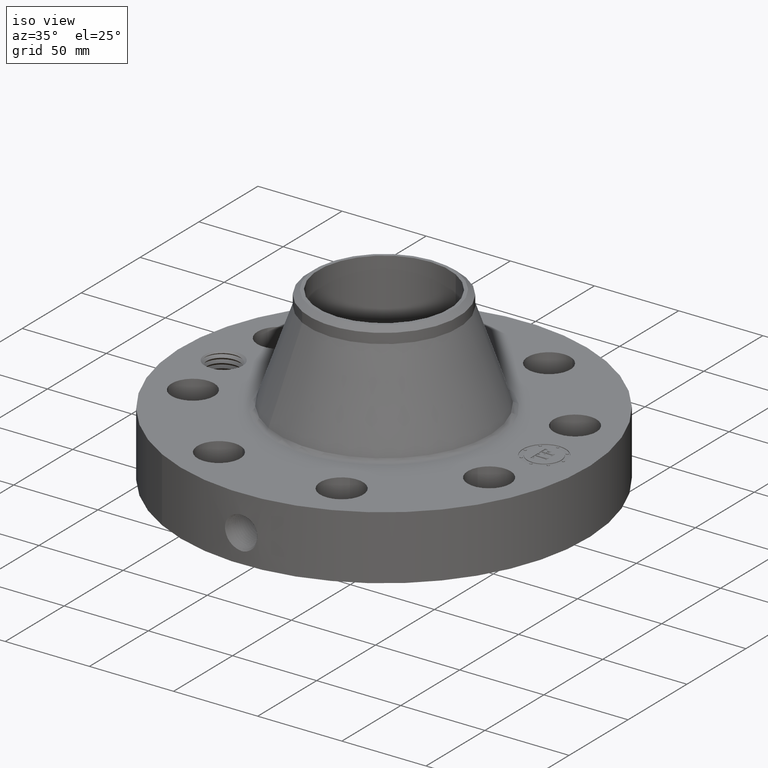
[diagram: clean part render]
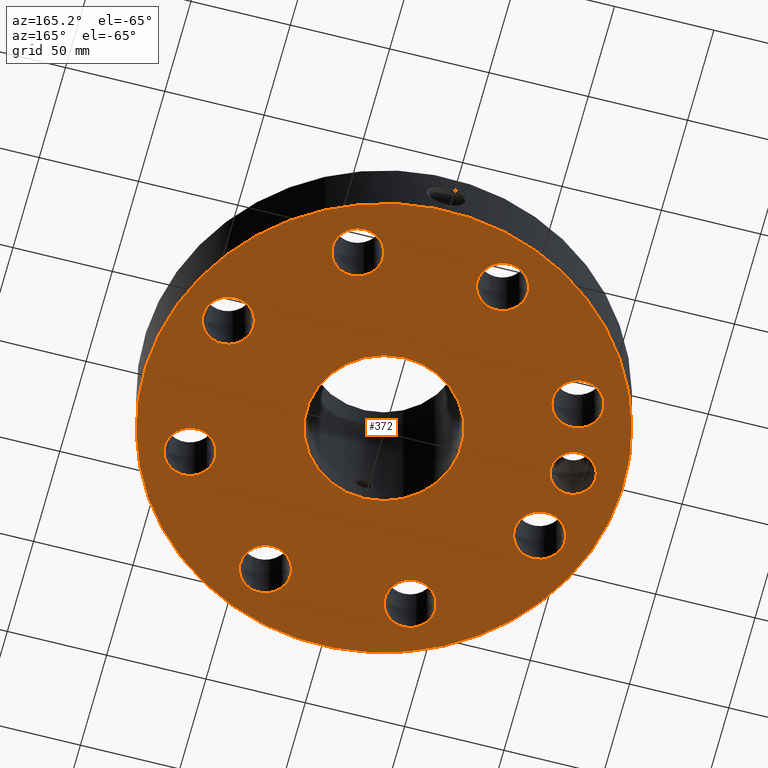
[diagram: tour spotlight — one face highlighted and labeled with its STEP entity id]
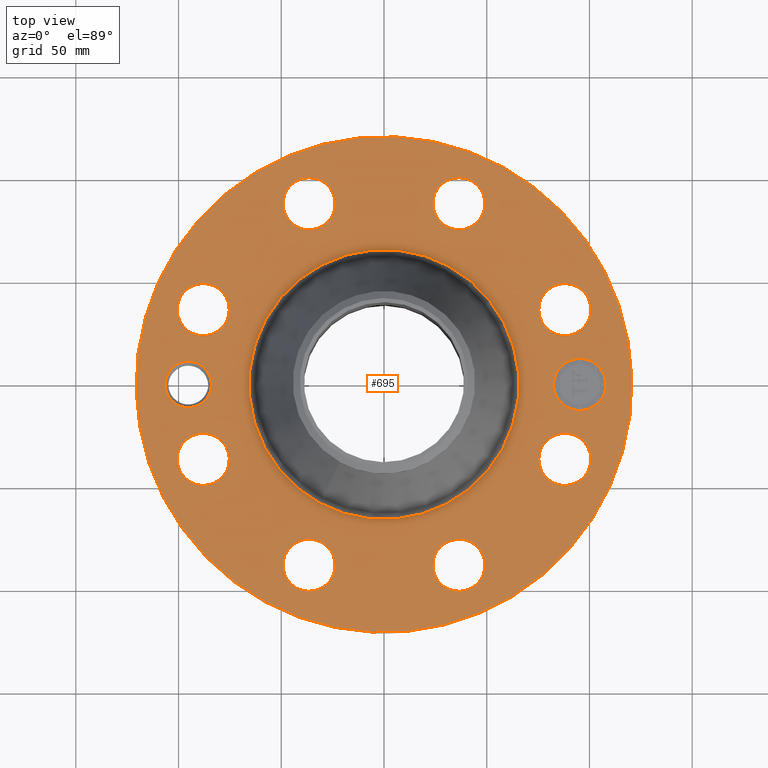
[diagram: tour spotlight — one face highlighted and labeled with its STEP entity id]
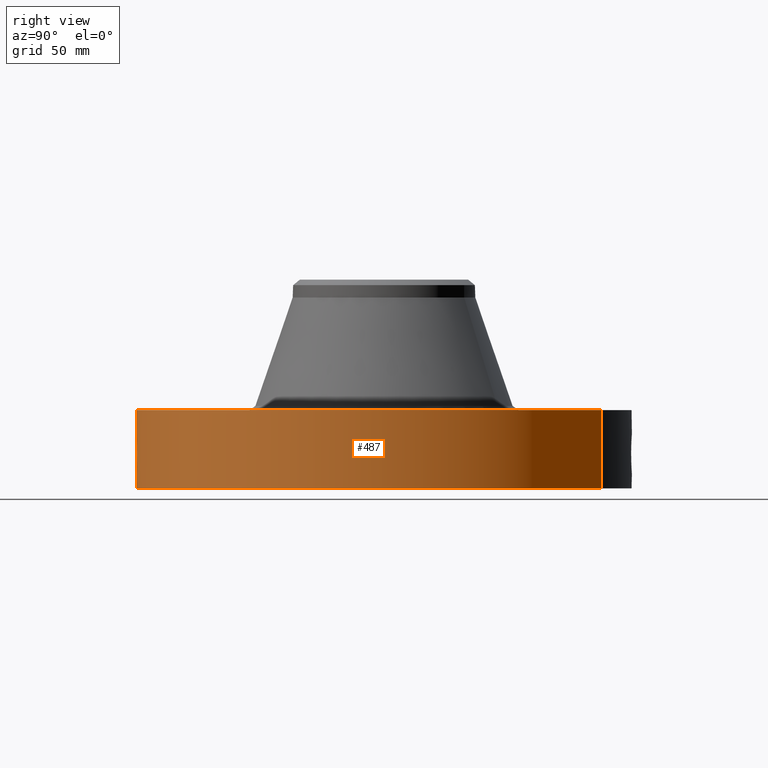
[diagram: tour spotlight — one face highlighted and labeled with its STEP entity id]
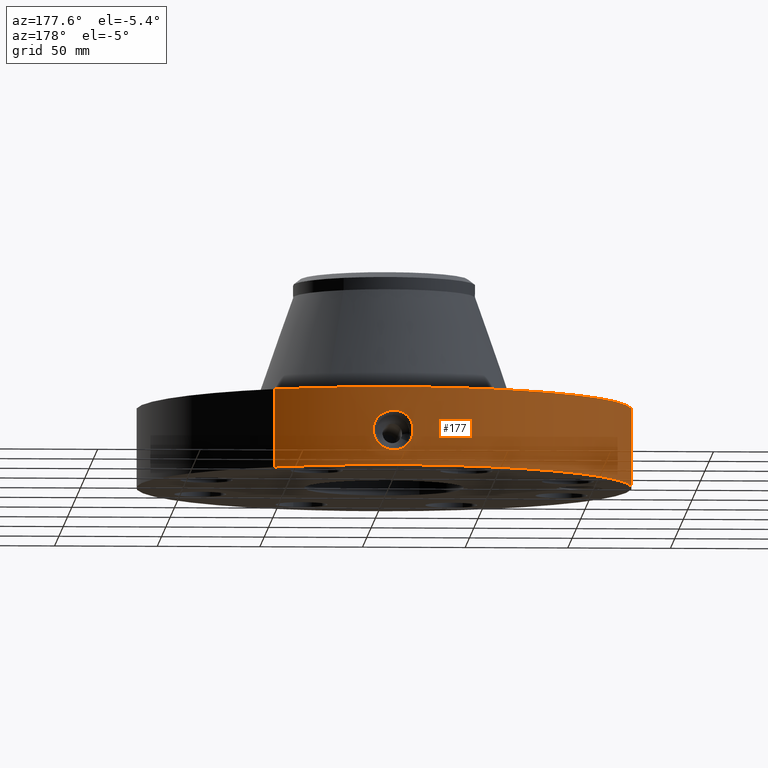
[diagram: tour spotlight — one face highlighted and labeled with its STEP entity id]
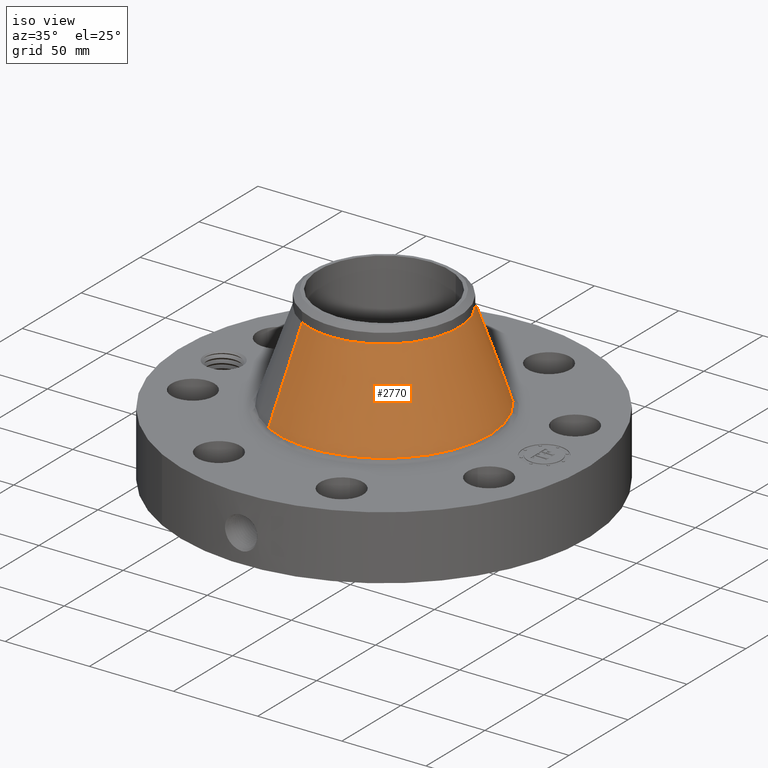
[diagram: tour spotlight — one face highlighted and labeled with its STEP entity id]
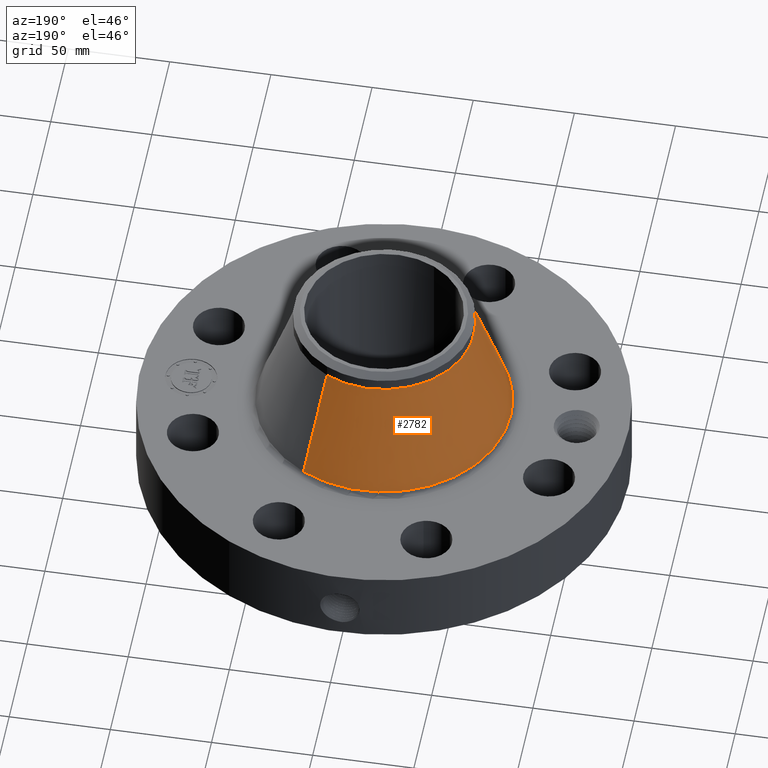
[diagram: tour spotlight — one face highlighted and labeled with its STEP entity id]
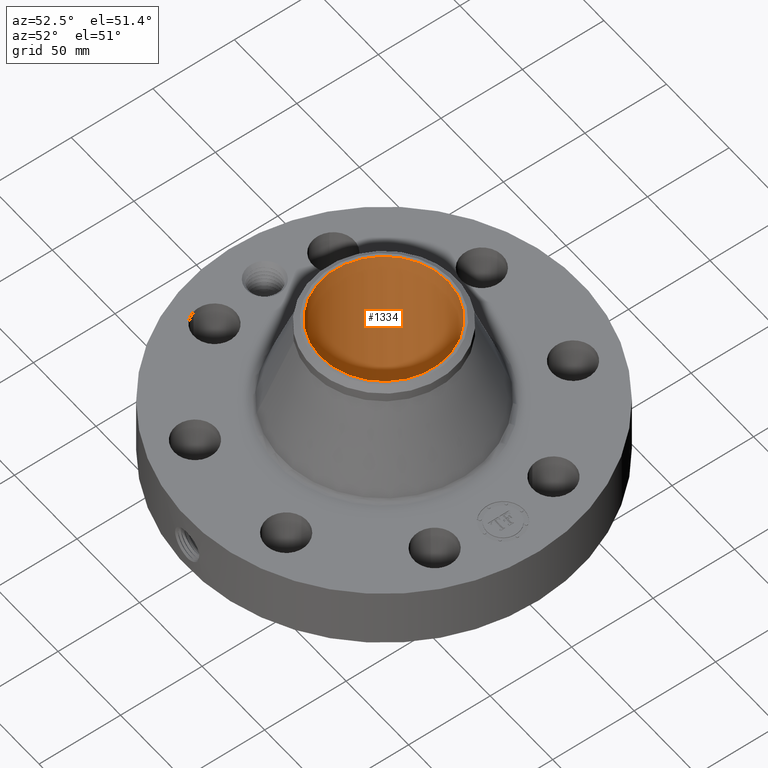
[diagram: tour spotlight — one face highlighted and labeled with its STEP entity id]
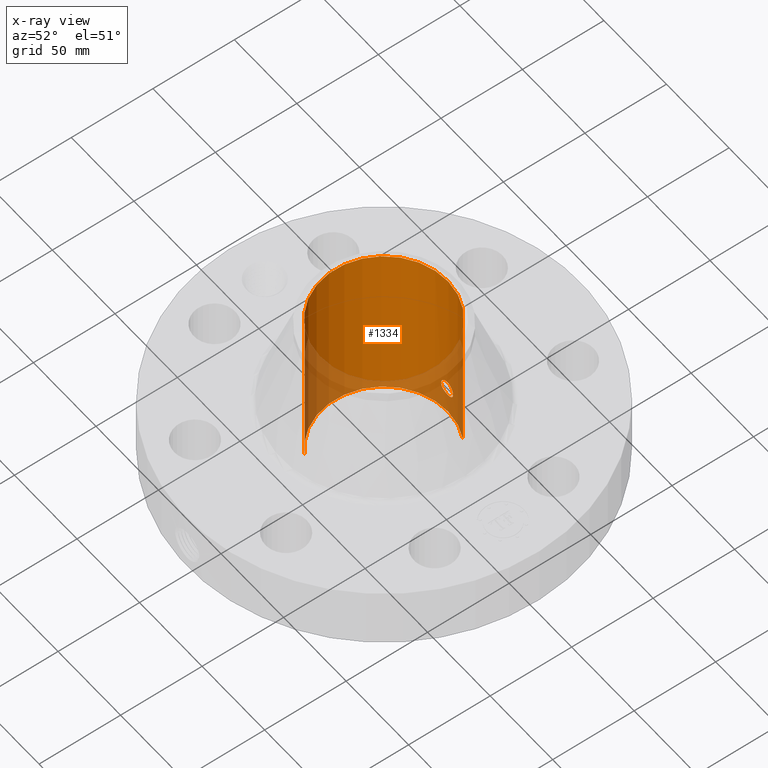
[diagram: x-ray of the same camera — body ghosted, this tour face saturated]
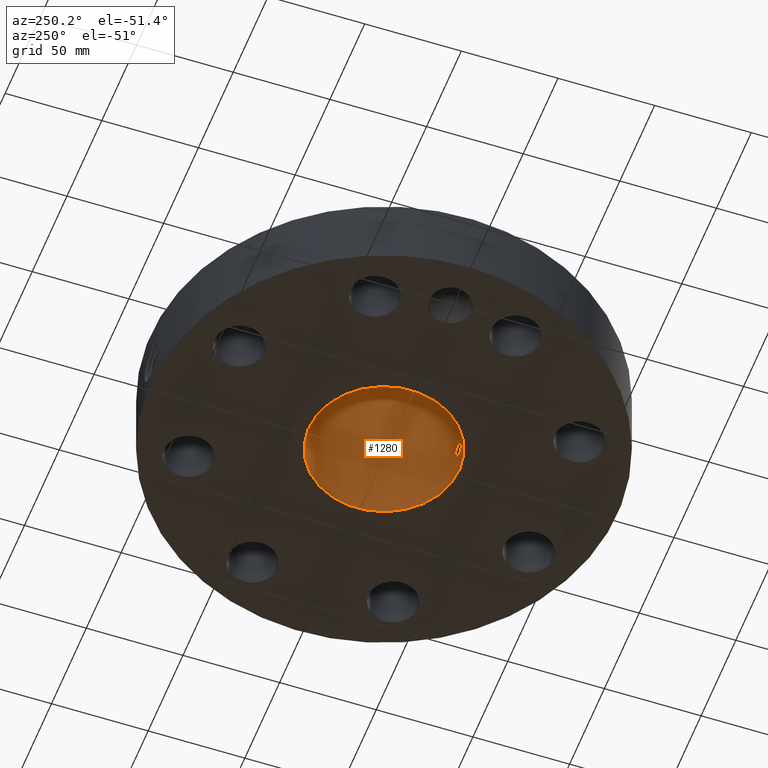
[diagram: tour spotlight — one face highlighted and labeled with its STEP entity id]
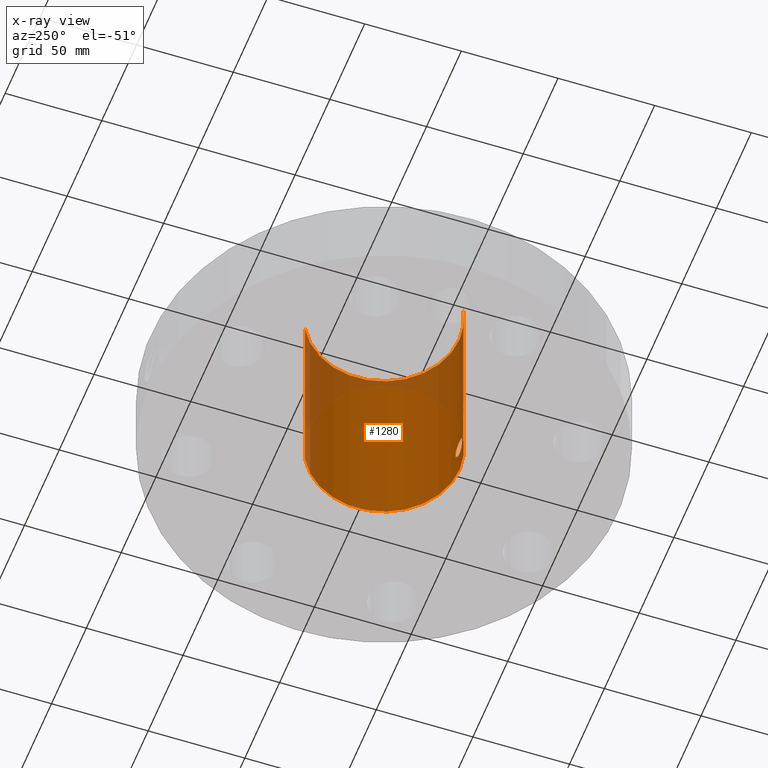
[diagram: x-ray of the same camera — body ghosted, this tour face saturated]
A machine part: a face-by-face anatomy tour. The part has 756 B-rep faces; the first image is the clean iso view, then the 8 largest visible faces are spotlighted one at a time (largest first), each with its STEP entity span.

Face 1 — auxiliary view, entity #372. In plain terms, the highlighted planar face has unit normal (0, 0, -1).
Definition (entity closure, byte-faithful):
#42=AXIS2_PLACEMENT_3D('Circle Axis2P3D',#40,#41,$) ;
#181=AXIS2_PLACEMENT_3D('Plane Axis2P3D',#178,#179,#180) ;
#185=AXIS2_PLACEMENT_3D('Circle Axis2P3D',#183,#184,$) ;
#194=AXIS2_PLACEMENT_3D('Circle Axis2P3D',#192,#193,$) ;
#203=AXIS2_PLACEMENT_3D('Circle Axis2P3D',#201,#202,$) ;
#212=AXIS2_PLACEMENT_3D('Circle Axis2P3D',#210,#211,$) ;
#221=AXIS2_PLACEMENT_3D('Circle Axis2P3D',#219,#220,$) ;
#230=AXIS2_PLACEMENT_3D('Circle Axis2P3D',#228,#229,$) ;
#239=AXIS2_PLACEMENT_3D('Circle Axis2P3D',#237,#238,$) ;
#248=AXIS2_PLACEMENT_3D('Circle Axis2P3D',#246,#247,$) ;
#257=AXIS2_PLACEMENT_3D('Circle Axis2P3D',#255,#256,$) ;
#266=AXIS2_PLACEMENT_3D('Circle Axis2P3D',#264,#265,$) ;
#275=AXIS2_PLACEMENT_3D('Circle Axis2P3D',#273,#274,$) ;
#284=AXIS2_PLACEMENT_3D('Circle Axis2P3D',#282,#283,$) ;
#293=AXIS2_PLACEMENT_3D('Circle Axis2P3D',#291,#292,$) ;
#302=AXIS2_PLACEMENT_3D('Circle Axis2P3D',#300,#301,$) ;
#311=AXIS2_PLACEMENT_3D('Circle Axis2P3D',#309,#310,$) ;
#320=AXIS2_PLACEMENT_3D('Circle Axis2P3D',#318,#319,$) ;
#329=AXIS2_PLACEMENT_3D('Circle Axis2P3D',#327,#328,$) ;
#338=AXIS2_PLACEMENT_3D('Circle Axis2P3D',#336,#337,$) ;
#347=AXIS2_PLACEMENT_3D('Circle Axis2P3D',#345,#346,$) ;
#356=AXIS2_PLACEMENT_3D('Circle Axis2P3D',#354,#355,$) ;
#365=AXIS2_PLACEMENT_3D('Circle Axis2P3D',#363,#364,$) ;
#40=CARTESIAN_POINT('Axis2P3D Location',(0.,0.,0.250000000001)) ;
#44=CARTESIAN_POINT('Vertex',(-2.27727130838,-4.168517169,0.250000000001)) ;
#46=CARTESIAN_POINT('Vertex',(2.27727130838,4.168517169,0.250000000001)) ;
#178=CARTESIAN_POINT('Axis2P3D Location',(0.,1.53400000001,0.250000000001)) ;
#183=CARTESIAN_POINT('Axis2P3D Location',(0.,0.,0.250000000001)) ;
#192=CARTESIAN_POINT('Axis2P3D Location',(-3.75000000002,0.,0.250000000001)) ;
#196=CARTESIAN_POINT('Vertex',(-3.36140644161,-0.212289628495,0.250000000001)) ;
#198=CARTESIAN_POINT('Vertex',(-4.13859355842,0.212289628495,0.250000000001)) ;
#201=CARTESIAN_POINT('Axis2P3D Location',(-3.75000000002,0.,0.250000000001)) ;
#210=CARTESIAN_POINT('Axis2P3D Location',(3.46454824693,-1.43506287137,0.250000000001)) ;
#214=CARTESIAN_POINT('Vertex',(3.90333952788,-1.67477564068,0.250000000001)) ;
#216=CARTESIAN_POINT('Vertex',(3.02575696598,-1.19535010207,0.250000000001)) ;
#219=CARTESIAN_POINT('Axis2P3D Location',(3.46454824693,-1.43506287137,0.250000000001)) ;
#228=CARTESIAN_POINT('Axis2P3D Location',(0.,0.,0.250000000001)) ;
#232=CARTESIAN_POINT('Vertex',(0.735438776222,1.34621164995,0.250000000001)) ;
#234=CARTESIAN_POINT('Vertex',(-0.735438776222,-1.34621164995,0.250000000001)) ;
#237=CARTESIAN_POINT('Axis2P3D Location',(0.,0.,0.250000000001)) ;
#246=CARTESIAN_POINT('Axis2P3D Location',(1.43506287137,-3.46454824693,0.250000000001)) ;
#250=CARTESIAN_POINT('Vertex',(1.2942931058,-2.98477343194,0.250000000001)) ;
#252=CARTESIAN_POINT('Vertex',(1.57583263695,-3.94432306193,0.250000000001)) ;
#255=CARTESIAN_POINT('Axis2P3D Location',(1.43506287137,-3.46454824693,0.250000000001)) ;
#264=CARTESIAN_POINT('Axis2P3D Location',(-1.43506287137,-3.46454824693,0.250000000001)) ;
#268=CARTESIAN_POINT('Vertex',(-1.19535010207,-3.02575696598,0.250000000001)) ;
#270=CARTESIAN_POINT('Vertex',(-1.67477564068,-3.90333952788,0.250000000001)) ;
#273=CARTESIAN_POINT('Axis2P3D Location',(-1.43506287137,-3.46454824693,0.250000000001)) ;
#282=CARTESIAN_POINT('Axis2P3D Location',(-3.46454824693,-1.43506287137,0.250000000001)) ;
#286=CARTESIAN_POINT('Vertex',(-2.98477343194,-1.2942931058,0.250000000001)) ;
#288=CARTESIAN_POINT('Vertex',(-3.94432306193,-1.57583263695,0.250000000001)) ;
#291=CARTESIAN_POINT('Axis2P3D Location',(-3.46454824693,-1.43506287137,0.250000000001)) ;
#300=CARTESIAN_POINT('Axis2P3D Location',(-3.46454824693,1.43506287137,0.250000000001)) ;
#304=CARTESIAN_POINT('Vertex',(-3.02575696598,1.19535010207,0.250000000001)) ;
#306=CARTESIAN_POINT('Vertex',(-3.90333952788,1.67477564068,0.250000000001)) ;
#309=CARTESIAN_POINT('Axis2P3D Location',(-3.46454824693,1.43506287137,0.250000000001)) ;
#318=CARTESIAN_POINT('Axis2P3D Location',(-1.43506287137,3.46454824693,0.250000000001)) ;
#322=CARTESIAN_POINT('Vertex',(-1.2942931058,2.98477343194,0.250000000001)) ;
#324=CARTESIAN_POINT('Vertex',(-1.57583263695,3.94432306193,0.250000000001)) ;
#327=CARTESIAN_POINT('Axis2P3D Location',(-1.43506287137,3.46454824693,0.250000000001)) ;
#336=CARTESIAN_POINT('Axis2P3D Location',(1.43506287137,3.46454824693,0.250000000001)) ;
#340=CARTESIAN_POINT('Vertex',(1.19535010207,3.02575696598,0.250000000001)) ;
#342=CARTESIAN_POINT('Vertex',(1.67477564068,3.90333952788,0.250000000001)) ;
#345=CARTESIAN_POINT('Axis2P3D Location',(1.43506287137,3.46454824693,0.250000000001)) ;
#354=CARTESIAN_POINT('Axis2P3D Location',(3.46454824693,1.43506287137,0.250000000001)) ;
#358=CARTESIAN_POINT('Vertex',(2.98477343194,1.2942931058,0.250000000001)) ;
#360=CARTESIAN_POINT('Vertex',(3.94432306193,1.57583263695,0.250000000001)) ;
#363=CARTESIAN_POINT('Axis2P3D Location',(3.46454824693,1.43506287137,0.250000000001)) ;
#41=DIRECTION('Axis2P3D Direction',(0.,0.,-0.0393700787402)) ;
#179=DIRECTION('Axis2P3D Direction',(0.,0.,-0.0393700787402)) ;
#180=DIRECTION('Axis2P3D XDirection',(0.0393700787402,0.,0.)) ;
#184=DIRECTION('Axis2P3D Direction',(0.,0.,-0.0393700787402)) ;
#193=DIRECTION('Axis2P3D Direction',(0.,0.,-0.0393700787402)) ;
#202=DIRECTION('Axis2P3D Direction',(0.,0.,-0.0393700787402)) ;
#211=DIRECTION('Axis2P3D Direction',(0.,0.,-0.0393700787402)) ;
#220=DIRECTION('Axis2P3D Direction',(0.,0.,-0.0393700787402)) ;
#229=DIRECTION('Axis2P3D Direction',(0.,0.,-0.0393700787402)) ;
#238=DIRECTION('Axis2P3D Direction',(0.,0.,-0.0393700787402)) ;
#247=DIRECTION('Axis2P3D Direction',(0.,0.,-0.0393700787402)) ;
#256=DIRECTION('Axis2P3D Direction',(0.,0.,-0.0393700787402)) ;
#265=DIRECTION('Axis2P3D Direction',(0.,0.,-0.0393700787402)) ;
#274=DIRECTION('Axis2P3D Direction',(0.,0.,-0.0393700787402)) ;
#283=DIRECTION('Axis2P3D Direction',(0.,0.,-0.0393700787402)) ;
#292=DIRECTION('Axis2P3D Direction',(0.,0.,-0.0393700787402)) ;
#301=DIRECTION('Axis2P3D Direction',(0.,0.,-0.0393700787402)) ;
#310=DIRECTION('Axis2P3D Direction',(0.,0.,-0.0393700787402)) ;
#319=DIRECTION('Axis2P3D Direction',(0.,0.,-0.0393700787402)) ;
#328=DIRECTION('Axis2P3D Direction',(0.,0.,-0.0393700787402)) ;
#337=DIRECTION('Axis2P3D Direction',(0.,0.,-0.0393700787402)) ;
#346=DIRECTION('Axis2P3D Direction',(0.,0.,-0.0393700787402)) ;
#355=DIRECTION('Axis2P3D Direction',(0.,0.,-0.0393700787402)) ;
#364=DIRECTION('Axis2P3D Direction',(0.,0.,-0.0393700787402)) ;
#189=ORIENTED_EDGE('',*,*,#48,.T.) ;
#190=ORIENTED_EDGE('',*,*,#187,.T.) ;
#207=ORIENTED_EDGE('',*,*,#200,.F.) ;
#208=ORIENTED_EDGE('',*,*,#205,.F.) ;
#225=ORIENTED_EDGE('',*,*,#218,.F.) ;
#226=ORIENTED_EDGE('',*,*,#223,.F.) ;
#243=ORIENTED_EDGE('',*,*,#236,.F.) ;
#244=ORIENTED_EDGE('',*,*,#241,.F.) ;
#261=ORIENTED_EDGE('',*,*,#254,.F.) ;
#262=ORIENTED_EDGE('',*,*,#259,.F.) ;
#279=ORIENTED_EDGE('',*,*,#272,.F.) ;
#280=ORIENTED_EDGE('',*,*,#277,.F.) ;
#297=ORIENTED_EDGE('',*,*,#290,.F.) ;
#298=ORIENTED_EDGE('',*,*,#295,.F.) ;
#315=ORIENTED_EDGE('',*,*,#308,.F.) ;
#316=ORIENTED_EDGE('',*,*,#313,.F.) ;
#333=ORIENTED_EDGE('',*,*,#326,.F.) ;
#334=ORIENTED_EDGE('',*,*,#331,.F.) ;
#351=ORIENTED_EDGE('',*,*,#344,.F.) ;
#352=ORIENTED_EDGE('',*,*,#349,.F.) ;
#369=ORIENTED_EDGE('',*,*,#362,.F.) ;
#370=ORIENTED_EDGE('',*,*,#367,.F.) ;
#209=FACE_BOUND('',#206,.T.) ;
#227=FACE_BOUND('',#224,.T.) ;
#245=FACE_BOUND('',#242,.T.) ;
#263=FACE_BOUND('',#260,.T.) ;
#281=FACE_BOUND('',#278,.T.) ;
#299=FACE_BOUND('',#296,.T.) ;
#317=FACE_BOUND('',#314,.T.) ;
#335=FACE_BOUND('',#332,.T.) ;
#353=FACE_BOUND('',#350,.T.) ;
#371=FACE_BOUND('',#368,.T.) ;
#372=ADVANCED_FACE('PartBody',(#191,#209,#227,#245,#263,#281,#299,#317,#335,#353,#371),#182,.T.) ;
#43=CIRCLE('generated circle',#42,4.75000000002) ;
#186=CIRCLE('generated circle',#185,4.75000000002) ;
#195=CIRCLE('generated circle',#194,0.442800000002) ;
#204=CIRCLE('generated circle',#203,0.442800000002) ;
#213=CIRCLE('generated circle',#212,0.500000000002) ;
#222=CIRCLE('generated circle',#221,0.500000000002) ;
#231=CIRCLE('generated circle',#230,1.53400000001) ;
#240=CIRCLE('generated circle',#239,1.53400000001) ;
#249=CIRCLE('generated circle',#248,0.500000000002) ;
#258=CIRCLE('generated circle',#257,0.500000000002) ;
#267=CIRCLE('generated circle',#266,0.500000000002) ;
#276=CIRCLE('generated circle',#275,0.500000000002) ;
#285=CIRCLE('generated circle',#284,0.500000000002) ;
#294=CIRCLE('generated circle',#293,0.500000000002) ;
#303=CIRCLE('generated circle',#302,0.500000000002) ;
#312=CIRCLE('generated circle',#311,0.500000000002) ;
#321=CIRCLE('generated circle',#320,0.500000000002) ;
#330=CIRCLE('generated circle',#329,0.500000000002) ;
#339=CIRCLE('generated circle',#338,0.500000000002) ;
#348=CIRCLE('generated circle',#347,0.500000000002) ;
#357=CIRCLE('generated circle',#356,0.500000000002) ;
#366=CIRCLE('generated circle',#365,0.500000000002) ;
#48=EDGE_CURVE('',#45,#47,#43,.T.) ;
#187=EDGE_CURVE('',#47,#45,#186,.T.) ;
#200=EDGE_CURVE('',#197,#199,#195,.T.) ;
#205=EDGE_CURVE('',#199,#197,#204,.T.) ;
#218=EDGE_CURVE('',#215,#217,#213,.T.) ;
#223=EDGE_CURVE('',#217,#215,#222,.T.) ;
#236=EDGE_CURVE('',#233,#235,#231,.T.) ;
#241=EDGE_CURVE('',#235,#233,#240,.T.) ;
#254=EDGE_CURVE('',#251,#253,#249,.T.) ;
#259=EDGE_CURVE('',#253,#251,#258,.T.) ;
#272=EDGE_CURVE('',#269,#271,#267,.T.) ;
#277=EDGE_CURVE('',#271,#269,#276,.T.) ;
#290=EDGE_CURVE('',#287,#289,#285,.T.) ;
#295=EDGE_CURVE('',#289,#287,#294,.T.) ;
#308=EDGE_CURVE('',#305,#307,#303,.T.) ;
#313=EDGE_CURVE('',#307,#305,#312,.T.) ;
#326=EDGE_CURVE('',#323,#325,#321,.T.) ;
#331=EDGE_CURVE('',#325,#323,#330,.T.) ;
#344=EDGE_CURVE('',#341,#343,#339,.T.) ;
#349=EDGE_CURVE('',#343,#341,#348,.T.) ;
#362=EDGE_CURVE('',#359,#361,#357,.T.) ;
#367=EDGE_CURVE('',#361,#359,#366,.T.) ;
#188=EDGE_LOOP('',(#189,#190)) ;
#206=EDGE_LOOP('',(#207,#208)) ;
#224=EDGE_LOOP('',(#225,#226)) ;
#242=EDGE_LOOP('',(#243,#244)) ;
#260=EDGE_LOOP('',(#261,#262)) ;
#278=EDGE_LOOP('',(#279,#280)) ;
#296=EDGE_LOOP('',(#297,#298)) ;
#314=EDGE_LOOP('',(#315,#316)) ;
#332=EDGE_LOOP('',(#333,#334)) ;
#350=EDGE_LOOP('',(#351,#352)) ;
#368=EDGE_LOOP('',(#369,#370)) ;
#191=FACE_OUTER_BOUND('',#188,.T.) ;
#182=PLANE('',#181) ;
#45=VERTEX_POINT('',#44) ;
#47=VERTEX_POINT('',#46) ;
#197=VERTEX_POINT('',#196) ;
#199=VERTEX_POINT('',#198) ;
#215=VERTEX_POINT('',#214) ;
#217=VERTEX_POINT('',#216) ;
#233=VERTEX_POINT('',#232) ;
#235=VERTEX_POINT('',#234) ;
#251=VERTEX_POINT('',#250) ;
#253=VERTEX_POINT('',#252) ;
#269=VERTEX_POINT('',#268) ;
#271=VERTEX_POINT('',#270) ;
#287=VERTEX_POINT('',#286) ;
#289=VERTEX_POINT('',#288) ;
#305=VERTEX_POINT('',#304) ;
#307=VERTEX_POINT('',#306) ;
#323=VERTEX_POINT('',#322) ;
#325=VERTEX_POINT('',#324) ;
#341=VERTEX_POINT('',#340) ;
#343=VERTEX_POINT('',#342) ;
#359=VERTEX_POINT('',#358) ;
#361=VERTEX_POINT('',#360) ;

Face 2 — top view, entity #695. In plain terms, the highlighted planar face has unit normal (0, 0, -1).
Definition (entity closure, byte-faithful):
#58=AXIS2_PLACEMENT_3D('Circle Axis2P3D',#56,#57,$) ;
#375=AXIS2_PLACEMENT_3D('Circle Axis2P3D',#373,#374,$) ;
#491=AXIS2_PLACEMENT_3D('Plane Axis2P3D',#488,#489,#490) ;
#499=AXIS2_PLACEMENT_3D('Circle Axis2P3D',#497,#498,$) ;
#508=AXIS2_PLACEMENT_3D('Circle Axis2P3D',#506,#507,$) ;
#517=AXIS2_PLACEMENT_3D('Circle Axis2P3D',#515,#516,$) ;
#526=AXIS2_PLACEMENT_3D('Circle Axis2P3D',#524,#525,$) ;
#535=AXIS2_PLACEMENT_3D('Circle Axis2P3D',#533,#534,$) ;
#544=AXIS2_PLACEMENT_3D('Circle Axis2P3D',#542,#543,$) ;
#553=AXIS2_PLACEMENT_3D('Circle Axis2P3D',#551,#552,$) ;
#562=AXIS2_PLACEMENT_3D('Circle Axis2P3D',#560,#561,$) ;
#571=AXIS2_PLACEMENT_3D('Circle Axis2P3D',#569,#570,$) ;
#580=AXIS2_PLACEMENT_3D('Circle Axis2P3D',#578,#579,$) ;
#589=AXIS2_PLACEMENT_3D('Circle Axis2P3D',#587,#588,$) ;
#598=AXIS2_PLACEMENT_3D('Circle Axis2P3D',#596,#597,$) ;
#607=AXIS2_PLACEMENT_3D('Circle Axis2P3D',#605,#606,$) ;
#616=AXIS2_PLACEMENT_3D('Circle Axis2P3D',#614,#615,$) ;
#625=AXIS2_PLACEMENT_3D('Circle Axis2P3D',#623,#624,$) ;
#634=AXIS2_PLACEMENT_3D('Circle Axis2P3D',#632,#633,$) ;
#643=AXIS2_PLACEMENT_3D('Circle Axis2P3D',#641,#642,$) ;
#652=AXIS2_PLACEMENT_3D('Circle Axis2P3D',#650,#651,$) ;
#661=AXIS2_PLACEMENT_3D('Circle Axis2P3D',#659,#660,$) ;
#670=AXIS2_PLACEMENT_3D('Circle Axis2P3D',#668,#669,$) ;
#679=AXIS2_PLACEMENT_3D('Circle Axis2P3D',#677,#678,$) ;
#688=AXIS2_PLACEMENT_3D('Circle Axis2P3D',#686,#687,$) ;
#53=CARTESIAN_POINT('Vertex',(-2.27727130838,-4.168517169,1.75000000001)) ;
#56=CARTESIAN_POINT('Axis2P3D Location',(0.,0.,1.75000000001)) ;
#60=CARTESIAN_POINT('Vertex',(2.27727130838,4.168517169,1.75000000001)) ;
#373=CARTESIAN_POINT('Axis2P3D Location',(0.,0.,1.75000000001)) ;
#488=CARTESIAN_POINT('Axis2P3D Location',(0.,4.75000000002,1.75000000001)) ;
#497=CARTESIAN_POINT('Axis2P3D Location',(-3.75000000001,5.59482469102E-016,1.75000000001)) ;
#501=CARTESIAN_POINT('Vertex',(-4.13859355842,0.212289628495,1.75000000001)) ;
#503=CARTESIAN_POINT('Vertex',(-3.36140644161,-0.212289628495,1.75000000001)) ;
#506=CARTESIAN_POINT('Axis2P3D Location',(-3.75000000001,5.59482469102E-016,1.75000000001)) ;
#515=CARTESIAN_POINT('Axis2P3D Location',(3.46454824693,-1.43506287137,1.75000000001)) ;
#519=CARTESIAN_POINT('Vertex',(3.02575696598,-1.19535010207,1.75000000001)) ;
#521=CARTESIAN_POINT('Vertex',(3.90333952788,-1.67477564068,1.75000000001)) ;
#524=CARTESIAN_POINT('Axis2P3D Location',(3.46454824693,-1.43506287137,1.75000000001)) ;
#533=CARTESIAN_POINT('Axis2P3D Location',(0.,0.,1.75000000001)) ;
#537=CARTESIAN_POINT('Vertex',(-1.23947864791,-2.26885044632,1.75000000001)) ;
#539=CARTESIAN_POINT('Vertex',(1.23947864791,2.26885044632,1.75000000001)) ;
#542=CARTESIAN_POINT('Axis2P3D Location',(0.,0.,1.75000000001)) ;
#551=CARTESIAN_POINT('Axis2P3D Location',(1.43506287137,-3.46454824693,1.75000000001)) ;
#555=CARTESIAN_POINT('Vertex',(1.57583263695,-3.94432306193,1.75000000001)) ;
#557=CARTESIAN_POINT('Vertex',(1.2942931058,-2.98477343194,1.75000000001)) ;
#560=CARTESIAN_POINT('Axis2P3D Location',(1.43506287137,-3.46454824693,1.75000000001)) ;
#569=CARTESIAN_POINT('Axis2P3D Location',(-1.43506287137,-3.46454824693,1.75000000001)) ;
#573=CARTESIAN_POINT('Vertex',(-1.67477564068,-3.90333952788,1.75000000001)) ;
#575=CARTESIAN_POINT('Vertex',(-1.19535010207,-3.02575696598,1.75000000001)) ;
#578=CARTESIAN_POINT('Axis2P3D Location',(-1.43506287137,-3.46454824693,1.75000000001)) ;
#587=CARTESIAN_POINT('Axis2P3D Location',(-3.46454824693,-1.43506287137,1.75000000001)) ;
#591=CARTESIAN_POINT('Vertex',(-3.94432306193,-1.57583263695,1.75000000001)) ;
#593=CARTESIAN_POINT('Vertex',(-2.98477343194,-1.2942931058,1.75000000001)) ;
#596=CARTESIAN_POINT('Axis2P3D Location',(-3.46454824693,-1.43506287137,1.75000000001)) ;
#605=CARTESIAN_POINT('Axis2P3D Location',(-3.46454824693,1.43506287137,1.75000000001)) ;
#609=CARTESIAN_POINT('Vertex',(-3.90333952788,1.67477564068,1.75000000001)) ;
#611=CARTESIAN_POINT('Vertex',(-3.02575696598,1.19535010207,1.75000000001)) ;
#614=CARTESIAN_POINT('Axis2P3D Location',(-3.46454824693,1.43506287137,1.75000000001)) ;
#623=CARTESIAN_POINT('Axis2P3D Location',(-1.43506287137,3.46454824693,1.75000000001)) ;
#627=CARTESIAN_POINT('Vertex',(-1.57583263695,3.94432306193,1.75000000001)) ;
#629=CARTESIAN_POINT('Vertex',(-1.2942931058,2.98477343194,1.75000000001)) ;
#632=CARTESIAN_POINT('Axis2P3D Location',(-1.43506287137,3.46454824693,1.75000000001)) ;
#641=CARTESIAN_POINT('Axis2P3D Location',(1.43506287137,3.46454824693,1.75000000001)) ;
#645=CARTESIAN_POINT('Vertex',(1.67477564068,3.90333952788,1.75000000001)) ;
#647=CARTESIAN_POINT('Vertex',(1.19535010207,3.02575696598,1.75000000001)) ;
#650=CARTESIAN_POINT('Axis2P3D Location',(1.43506287137,3.46454824693,1.75000000001)) ;
#659=CARTESIAN_POINT('Axis2P3D Location',(3.46454824693,1.43506287137,1.75000000001)) ;
#663=CARTESIAN_POINT('Vertex',(3.94432306193,1.57583263695,1.75000000001)) ;
#665=CARTESIAN_POINT('Vertex',(2.98477343194,1.2942931058,1.75000000001)) ;
#668=CARTESIAN_POINT('Axis2P3D Location',(3.46454824693,1.43506287137,1.75000000001)) ;
#677=CARTESIAN_POINT('Axis2P3D Location',(3.75000000002,-9.51120197474E-015,1.75000000001)) ;
#681=CARTESIAN_POINT('Vertex',(3.75000000001,0.499999995002,1.75000000001)) ;
#683=CARTESIAN_POINT('Vertex',(3.75000000002,-0.499999995002,1.75000000001)) ;
#686=CARTESIAN_POINT('Axis2P3D Location',(3.75000000002,-1.00706844438E-014,1.75000000001)) ;
#57=DIRECTION('Axis2P3D Direction',(0.,0.,-0.0393700787402)) ;
#374=DIRECTION('Axis2P3D Direction',(0.,0.,-0.0393700787402)) ;
#489=DIRECTION('Axis2P3D Direction',(0.,0.,-0.0393700787402)) ;
#490=DIRECTION('Axis2P3D XDirection',(0.0393700787402,0.,0.)) ;
#498=DIRECTION('Axis2P3D Direction',(0.,0.,-0.0393700787402)) ;
#507=DIRECTION('Axis2P3D Direction',(0.,0.,-0.0393700787402)) ;
#516=DIRECTION('Axis2P3D Direction',(0.,0.,-0.0393700787402)) ;
#525=DIRECTION('Axis2P3D Direction',(0.,0.,-0.0393700787402)) ;
#534=DIRECTION('Axis2P3D Direction',(0.,0.,-0.0393700787402)) ;
#543=DIRECTION('Axis2P3D Direction',(0.,0.,-0.0393700787402)) ;
#552=DIRECTION('Axis2P3D Direction',(0.,0.,-0.0393700787402)) ;
#561=DIRECTION('Axis2P3D Direction',(0.,0.,-0.0393700787402)) ;
#570=DIRECTION('Axis2P3D Direction',(0.,0.,-0.0393700787402)) ;
#579=DIRECTION('Axis2P3D Direction',(0.,0.,-0.0393700787402)) ;
#588=DIRECTION('Axis2P3D Direction',(0.,0.,-0.0393700787402)) ;
#597=DIRECTION('Axis2P3D Direction',(0.,0.,-0.0393700787402)) ;
#606=DIRECTION('Axis2P3D Direction',(0.,0.,-0.0393700787402)) ;
#615=DIRECTION('Axis2P3D Direction',(0.,0.,-0.0393700787402)) ;
#624=DIRECTION('Axis2P3D Direction',(0.,0.,-0.0393700787402)) ;
#633=DIRECTION('Axis2P3D Direction',(0.,0.,-0.0393700787402)) ;
#642=DIRECTION('Axis2P3D Direction',(0.,0.,-0.0393700787402)) ;
#651=DIRECTION('Axis2P3D Direction',(0.,0.,-0.0393700787402)) ;
#660=DIRECTION('Axis2P3D Direction',(0.,0.,-0.0393700787402)) ;
#669=DIRECTION('Axis2P3D Direction',(0.,0.,-0.0393700787402)) ;
#678=DIRECTION('Axis2P3D Direction',(0.,0.,-0.0393700787402)) ;
#687=DIRECTION('Axis2P3D Direction',(0.,0.,-0.0393700787402)) ;
#494=ORIENTED_EDGE('',*,*,#377,.F.) ;
#495=ORIENTED_EDGE('',*,*,#62,.F.) ;
#512=ORIENTED_EDGE('',*,*,#505,.T.) ;
#513=ORIENTED_EDGE('',*,*,#510,.T.) ;
#530=ORIENTED_EDGE('',*,*,#523,.T.) ;
#531=ORIENTED_EDGE('',*,*,#528,.T.) ;
#548=ORIENTED_EDGE('',*,*,#541,.T.) ;
#549=ORIENTED_EDGE('',*,*,#546,.T.) ;
#566=ORIENTED_EDGE('',*,*,#559,.T.) ;
#567=ORIENTED_EDGE('',*,*,#564,.T.) ;
#584=ORIENTED_EDGE('',*,*,#577,.T.) ;
#585=ORIENTED_EDGE('',*,*,#582,.T.) ;
#602=ORIENTED_EDGE('',*,*,#595,.T.) ;
#603=ORIENTED_EDGE('',*,*,#600,.T.) ;
#620=ORIENTED_EDGE('',*,*,#613,.T.) ;
#621=ORIENTED_EDGE('',*,*,#618,.T.) ;
#638=ORIENTED_EDGE('',*,*,#631,.T.) ;
#639=ORIENTED_EDGE('',*,*,#636,.T.) ;
#656=ORIENTED_EDGE('',*,*,#649,.T.) ;
#657=ORIENTED_EDGE('',*,*,#654,.T.) ;
#674=ORIENTED_EDGE('',*,*,#667,.T.) ;
#675=ORIENTED_EDGE('',*,*,#672,.T.) ;
#692=ORIENTED_EDGE('',*,*,#685,.T.) ;
#693=ORIENTED_EDGE('',*,*,#690,.T.) ;
#514=FACE_BOUND('',#511,.T.) ;
#532=FACE_BOUND('',#529,.T.) ;
#550=FACE_BOUND('',#547,.T.) ;
#568=FACE_BOUND('',#565,.T.) ;
#586=FACE_BOUND('',#583,.T.) ;
#604=FACE_BOUND('',#601,.T.) ;
#622=FACE_BOUND('',#619,.T.) ;
#640=FACE_BOUND('',#637,.T.) ;
#658=FACE_BOUND('',#655,.T.) ;
#676=FACE_BOUND('',#673,.T.) ;
#694=FACE_BOUND('',#691,.T.) ;
#695=ADVANCED_FACE('PartBody',(#496,#514,#532,#550,#568,#586,#604,#622,#640,#658,#676,#694),#492,.F.) ;
#59=CIRCLE('generated circle',#58,4.75000000002) ;
#376=CIRCLE('generated circle',#375,4.75000000002) ;
#500=CIRCLE('generated circle',#499,0.442800000002) ;
#509=CIRCLE('generated circle',#508,0.442800000002) ;
#518=CIRCLE('generated circle',#517,0.500000000002) ;
#527=CIRCLE('generated circle',#526,0.500000000002) ;
#536=CIRCLE('generated circle',#535,2.58534130559) ;
#545=CIRCLE('generated circle',#544,2.58534130559) ;
#554=CIRCLE('generated circle',#553,0.500000000002) ;
#563=CIRCLE('generated circle',#562,0.500000000002) ;
#572=CIRCLE('generated circle',#571,0.500000000002) ;
#581=CIRCLE('generated circle',#580,0.500000000002) ;
#590=CIRCLE('generated circle',#589,0.500000000002) ;
#599=CIRCLE('generated circle',#598,0.500000000002) ;
#608=CIRCLE('generated circle',#607,0.500000000002) ;
#617=CIRCLE('generated circle',#616,0.500000000002) ;
#626=CIRCLE('generated circle',#625,0.500000000002) ;
#635=CIRCLE('generated circle',#634,0.500000000002) ;
#644=CIRCLE('generated circle',#643,0.500000000002) ;
#653=CIRCLE('generated circle',#652,0.500000000002) ;
#662=CIRCLE('generated circle',#661,0.500000000002) ;
#671=CIRCLE('generated circle',#670,0.500000000002) ;
#680=CIRCLE('generated circle',#679,0.499999995002) ;
#689=CIRCLE('generated circle',#688,0.499999995002) ;
#62=EDGE_CURVE('',#54,#61,#59,.T.) ;
#377=EDGE_CURVE('',#61,#54,#376,.T.) ;
#505=EDGE_CURVE('',#502,#504,#500,.T.) ;
#510=EDGE_CURVE('',#504,#502,#509,.T.) ;
#523=EDGE_CURVE('',#520,#522,#518,.T.) ;
#528=EDGE_CURVE('',#522,#520,#527,.T.) ;
#541=EDGE_CURVE('',#538,#540,#536,.T.) ;
#546=EDGE_CURVE('',#540,#538,#545,.T.) ;
#559=EDGE_CURVE('',#556,#558,#554,.T.) ;
#564=EDGE_CURVE('',#558,#556,#563,.T.) ;
#577=EDGE_CURVE('',#574,#576,#572,.T.) ;
#582=EDGE_CURVE('',#576,#574,#581,.T.) ;
#595=EDGE_CURVE('',#592,#594,#590,.T.) ;
#600=EDGE_CURVE('',#594,#592,#599,.T.) ;
#613=EDGE_CURVE('',#610,#612,#608,.T.) ;
#618=EDGE_CURVE('',#612,#610,#617,.T.) ;
#631=EDGE_CURVE('',#628,#630,#626,.T.) ;
#636=EDGE_CURVE('',#630,#628,#635,.T.) ;
#649=EDGE_CURVE('',#646,#648,#644,.T.) ;
#654=EDGE_CURVE('',#648,#646,#653,.T.) ;
#667=EDGE_CURVE('',#664,#666,#662,.T.) ;
#672=EDGE_CURVE('',#666,#664,#671,.T.) ;
#685=EDGE_CURVE('',#682,#684,#680,.T.) ;
#690=EDGE_CURVE('',#684,#682,#689,.T.) ;
#493=EDGE_LOOP('',(#494,#495)) ;
#511=EDGE_LOOP('',(#512,#513)) ;
#529=EDGE_LOOP('',(#530,#531)) ;
#547=EDGE_LOOP('',(#548,#549)) ;
#565=EDGE_LOOP('',(#566,#567)) ;
#583=EDGE_LOOP('',(#584,#585)) ;
#601=EDGE_LOOP('',(#602,#603)) ;
#619=EDGE_LOOP('',(#620,#621)) ;
#637=EDGE_LOOP('',(#638,#639)) ;
#655=EDGE_LOOP('',(#656,#657)) ;
#673=EDGE_LOOP('',(#674,#675)) ;
#691=EDGE_LOOP('',(#692,#693)) ;
#496=FACE_OUTER_BOUND('',#493,.T.) ;
#492=PLANE('',#491) ;
#54=VERTEX_POINT('',#53) ;
#61=VERTEX_POINT('',#60) ;
#502=VERTEX_POINT('',#501) ;
#504=VERTEX_POINT('',#503) ;
#520=VERTEX_POINT('',#519) ;
#522=VERTEX_POINT('',#521) ;
#538=VERTEX_POINT('',#537) ;
#540=VERTEX_POINT('',#539) ;
#556=VERTEX_POINT('',#555) ;
#558=VERTEX_POINT('',#557) ;
#574=VERTEX_POINT('',#573) ;
#576=VERTEX_POINT('',#575) ;
#592=VERTEX_POINT('',#591) ;
#594=VERTEX_POINT('',#593) ;
#610=VERTEX_POINT('',#609) ;
#612=VERTEX_POINT('',#611) ;
#628=VERTEX_POINT('',#627) ;
#630=VERTEX_POINT('',#629) ;
#646=VERTEX_POINT('',#645) ;
#648=VERTEX_POINT('',#647) ;
#664=VERTEX_POINT('',#663) ;
#666=VERTEX_POINT('',#665) ;
#682=VERTEX_POINT('',#681) ;
#684=VERTEX_POINT('',#683) ;

Face 3 — right view, entity #487. In plain terms, the highlighted cylindrical surface (partial cylindrical patch) has radius 120.65 mm, axis along (0, 0, -1).
Definition (entity closure, byte-faithful):
#38=AXIS2_PLACEMENT_3D('Cylinder Axis2P3D',#35,#36,#37) ;
#185=AXIS2_PLACEMENT_3D('Circle Axis2P3D',#183,#184,$) ;
#375=AXIS2_PLACEMENT_3D('Circle Axis2P3D',#373,#374,$) ;
#35=CARTESIAN_POINT('Axis2P3D Location',(0.,0.,2.25000000001)) ;
#44=CARTESIAN_POINT('Vertex',(-2.27727130838,-4.168517169,0.250000000001)) ;
#46=CARTESIAN_POINT('Vertex',(2.27727130838,4.168517169,0.250000000001)) ;
#49=CARTESIAN_POINT('Line Origine',(-2.27727130838,-4.168517169,1.)) ;
#53=CARTESIAN_POINT('Vertex',(-2.27727130838,-4.168517169,1.75000000001)) ;
#60=CARTESIAN_POINT('Vertex',(2.27727130838,4.168517169,1.75000000001)) ;
#63=CARTESIAN_POINT('Line Origine',(2.27727130838,4.168517169,1.)) ;
#183=CARTESIAN_POINT('Axis2P3D Location',(0.,0.,0.250000000001)) ;
#373=CARTESIAN_POINT('Axis2P3D Location',(0.,0.,1.75000000001)) ;
#385=CARTESIAN_POINT('Control Point',(0.0664443336466,-4.74953525629,1.28781472967)) ;
#386=CARTESIAN_POINT('Control Point',(0.0447973834523,-4.74983808953,1.29195972283)) ;
#387=CARTESIAN_POINT('Control Point',(0.0227596203673,-4.74999661825,1.29407372225)) ;
#388=CARTESIAN_POINT('Control Point',(0.0007170809839,-4.74999994589,1.29411849685)) ;
#389=CARTESIAN_POINT('Vertex',(0.0664188696294,-4.74953588304,1.28781991618)) ;
#391=CARTESIAN_POINT('Vertex',(0.000716859021628,-4.74999994592,1.29411850704)) ;
#395=CARTESIAN_POINT('Control Point',(0.0664187407928,-4.74953561425,1.28781927448)) ;
#396=CARTESIAN_POINT('Control Point',(0.102753721,-4.74902749644,1.28201870457)) ;
#397=CARTESIAN_POINT('Control Point',(0.138115211602,-4.74810201592,1.26977317773)) ;
#398=CARTESIAN_POINT('Control Point',(0.170475904125,-4.74693985282,1.25208714514)) ;
#399=CARTESIAN_POINT('Vertex',(0.170475904125,-4.74693985282,1.25208714514)) ;
#403=CARTESIAN_POINT('Control Point',(0.0289717654606,-4.74991164518,0.53104117424)) ;
#404=CARTESIAN_POINT('Control Point',(0.0747966531703,-4.74963213937,0.536930034357)) ;
#405=CARTESIAN_POINT('Control Point',(0.119477769955,-4.74880696846,0.550185753395)) ;
#406=CARTESIAN_POINT('Control Point',(0.161312069032,-4.74750063068,0.57044024244)) ;
#407=CARTESIAN_POINT('Control Point',(0.245546224645,-4.74402236714,0.62855907637)) ;
#408=CARTESIAN_POINT('Control Point',(0.306057140398,-4.74027319235,0.709607764513)) ;
#409=CARTESIAN_POINT('Control Point',(0.330993871984,-4.73849840088,0.759101526965)) ;
#410=CARTESIAN_POINT('Control Point',(0.358450567619,-4.73646747946,0.847415945872)) ;
#411=CARTESIAN_POINT('Control Point',(0.360779964704,-4.73627580375,0.938205105283)) ;
#412=CARTESIAN_POINT('Control Point',(0.357515798069,-4.73652939594,0.975158290227)) ;
#413=CARTESIAN_POINT('Control Point',(0.339028118432,-4.73793770505,1.06509307521)) ;
#414=CARTESIAN_POINT('Control Point',(0.295443998827,-4.74092283743,1.14643073318)) ;
#415=CARTESIAN_POINT('Control Point',(0.260804026735,-4.74309248769,1.1900096314)) ;
#416=CARTESIAN_POINT('Control Point',(0.218315242595,-4.7452218082,1.225941594)) ;
#417=CARTESIAN_POINT('Control Point',(0.170475904125,-4.74693985282,1.25208714514)) ;
#418=CARTESIAN_POINT('Vertex',(0.0289717654606,-4.74991164518,0.53104117424)) ;
#422=CARTESIAN_POINT('Control Point',(0.0289717654606,-4.74991164518,0.53104117424)) ;
#423=CARTESIAN_POINT('Control Point',(0.0193073849474,-4.74997059241,0.530854119281)) ;
#424=CARTESIAN_POINT('Control Point',(0.00964169540522,-4.75000000556,0.530965378902)) ;
#425=CARTESIAN_POINT('Control Point',(-2.72878353191E-006,-4.75000000002,0.531374667805)) ;
#426=CARTESIAN_POINT('Vertex',(-2.72878353841E-006,-4.75000000002,0.531374667805)) ;
#430=CARTESIAN_POINT('Control Point',(-0.194608877525,-4.7460117346,0.583778592451)) ;
#431=CARTESIAN_POINT('Control Point',(-0.134839366287,-4.74846256661,0.552003246567)) ;
#432=CARTESIAN_POINT('Control Point',(-0.0678388662211,-4.74999996105,0.534253489827)) ;
#433=CARTESIAN_POINT('Control Point',(-2.72878353616E-006,-4.75000000002,0.531374667805)) ;
#434=CARTESIAN_POINT('Vertex',(-0.194608877525,-4.7460117346,0.583778592451)) ;
#438=CARTESIAN_POINT('Control Point',(-0.332827639993,-4.73832520647,0.701219893118)) ;
#439=CARTESIAN_POINT('Control Point',(-0.305364932818,-4.74025423152,0.66455856728)) ;
#440=CARTESIAN_POINT('Control Point',(-0.272251915482,-4.74236913954,0.63221848109)) ;
#441=CARTESIAN_POINT('Control Point',(-0.234901661664,-4.74435954031,0.605199499462)) ;
#442=CARTESIAN_POINT('Control Point',(-0.194608877525,-4.7460117346,0.583778592451)) ;
#443=CARTESIAN_POINT('Vertex',(-0.332827639993,-4.73832520647,0.701219893118)) ;
#447=CARTESIAN_POINT('Control Point',(-0.332827639993,-4.73832520647,0.701219893118)) ;
#448=CARTESIAN_POINT('Control Point',(-0.362191423101,-4.73626264676,0.744057421674)) ;
#449=CARTESIAN_POINT('Control Point',(-0.384606624187,-4.73444241076,0.791551724289)) ;
#450=CARTESIAN_POINT('Control Point',(-0.399485379706,-4.73317703047,0.84180424816)) ;
#451=CARTESIAN_POINT('Control Point',(-0.406764031121,-4.73255142848,0.893249885444)) ;
#452=CARTESIAN_POINT('Vertex',(-0.406764031121,-4.73255142848,0.893249885444)) ;
#456=CARTESIAN_POINT('Control Point',(-0.406764031121,-4.73255142848,0.893249885444)) ;
#457=CARTESIAN_POINT('Control Point',(-0.410937043432,-4.73219275698,0.943590828623)) ;
#458=CARTESIAN_POINT('Control Point',(-0.406199449954,-4.73259532086,0.994560330849)) ;
#459=CARTESIAN_POINT('Control Point',(-0.392245340201,-4.73383204363,1.04389645051)) ;
#460=CARTESIAN_POINT('Control Point',(-0.356408433108,-4.73676757046,1.11810453387)) ;
#461=CARTESIAN_POINT('Control Point',(-0.30335547227,-4.74037517985,1.17883123609)) ;
#462=CARTESIAN_POINT('Control Point',(-0.280572013156,-4.74179821439,1.2000545704)) ;
#463=CARTESIAN_POINT('Control Point',(-0.216669478454,-4.74536023062,1.24871840008)) ;
#464=CARTESIAN_POINT('Control Point',(-0.143130760673,-4.7481822494,1.27972813256)) ;
#465=CARTESIAN_POINT('Control Point',(-0.0957567995329,-4.74940386749,1.29169900668)) ;
#466=CARTESIAN_POINT('Control Point',(-0.0475901556899,-4.75000025916,1.29648726642)) ;
#467=CARTESIAN_POINT('Control Point',(2.58579355193E-005,-4.74999999995,1.29415298437)) ;
#468=CARTESIAN_POINT('Vertex',(2.58579355155E-005,-4.74999999995,1.29415298437)) ;
#472=CARTESIAN_POINT('Control Point',(0.000716859009904,-4.74999994592,1.29411850702)) ;
#473=CARTESIAN_POINT('Control Point',(0.000371381626739,-4.74999999807,1.29413604576)) ;
#474=CARTESIAN_POINT('Control Point',(2.58579432306E-005,-4.74999999995,1.29415298437)) ;
#36=DIRECTION('Axis2P3D Direction',(0.,0.,-0.0393700787402)) ;
#37=DIRECTION('Axis2P3D XDirection',(0.0188750212049,0.0345504945626,0.)) ;
#50=DIRECTION('Vector Direction',(0.,0.,-0.0393700787402)) ;
#64=DIRECTION('Vector Direction',(0.,0.,-0.0393700787402)) ;
#184=DIRECTION('Axis2P3D Direction',(0.,0.,-0.0393700787402)) ;
#374=DIRECTION('Axis2P3D Direction',(0.,0.,-0.0393700787402)) ;
#51=VECTOR('Line Direction',#50,0.0393700787402) ;
#65=VECTOR('Line Direction',#64,0.0393700787402) ;
#379=ORIENTED_EDGE('',*,*,#187,.F.) ;
#380=ORIENTED_EDGE('',*,*,#67,.T.) ;
#381=ORIENTED_EDGE('',*,*,#377,.T.) ;
#382=ORIENTED_EDGE('',*,*,#55,.F.) ;
#477=ORIENTED_EDGE('',*,*,#393,.F.) ;
#478=ORIENTED_EDGE('',*,*,#401,.T.) ;
#479=ORIENTED_EDGE('',*,*,#420,.F.) ;
#480=ORIENTED_EDGE('',*,*,#428,.T.) ;
#481=ORIENTED_EDGE('',*,*,#436,.F.) ;
#482=ORIENTED_EDGE('',*,*,#445,.F.) ;
#483=ORIENTED_EDGE('',*,*,#454,.T.) ;
#484=ORIENTED_EDGE('',*,*,#470,.T.) ;
#485=ORIENTED_EDGE('',*,*,#475,.F.) ;
#486=FACE_BOUND('',#476,.T.) ;
#487=ADVANCED_FACE('PartBody',(#383,#486),#39,.T.) ;
#384=B_SPLINE_CURVE_WITH_KNOTS('',3,(#385,#386,#387,#388),.UNSPECIFIED.,.F.,.U.,(4,4),(4.07664136125,6.52206473219),.UNSPECIFIED.) ;
#394=B_SPLINE_CURVE_WITH_KNOTS('',3,(#395,#396,#397,#398),.UNSPECIFIED.,.F.,.U.,(4,4),(0.,4.13427651558),.UNSPECIFIED.) ;
#402=B_SPLINE_CURVE_WITH_KNOTS('',5,(#403,#404,#405,#406,#407,#408,#409,#410,#411,#412,#413,#414,#415,#416,#417),.UNSPECIFIED.,.F.,.U.,(6,3,3,3,6),(0.,8.03013531032,17.9302111504,24.7841526725,34.970433234),.UNSPECIFIED.) ;
#421=B_SPLINE_CURVE_WITH_KNOTS('',3,(#422,#423,#424,#425),.UNSPECIFIED.,.F.,.U.,(4,4),(0.,1.00795509622),.UNSPECIFIED.) ;
#429=B_SPLINE_CURVE_WITH_KNOTS('',3,(#430,#431,#432,#433),.UNSPECIFIED.,.F.,.U.,(4,4),(0.,7.08966954538),.UNSPECIFIED.) ;
#437=B_SPLINE_CURVE_WITH_KNOTS('',4,(#438,#439,#440,#441,#442),.UNSPECIFIED.,.F.,.U.,(5,5),(0.,6.37253605641),.UNSPECIFIED.) ;
#446=B_SPLINE_CURVE_WITH_KNOTS('',4,(#447,#448,#449,#450,#451),.UNSPECIFIED.,.F.,.U.,(5,5),(0.,7.22451487815),.UNSPECIFIED.) ;
#455=B_SPLINE_CURVE_WITH_KNOTS('',5,(#456,#457,#458,#459,#460,#461,#462,#463,#464,#465,#466,#467),.UNSPECIFIED.,.F.,.U.,(6,3,3,6),(0.,8.77965380679,14.3423432735,23.2427618104),.UNSPECIFIED.) ;
#471=B_SPLINE_CURVE_WITH_KNOTS('',2,(#472,#473,#474),.UNSPECIFIED.,.F.,.U.,(3,3),(1.10272046804,1.12855468109),.UNSPECIFIED.) ;
#186=CIRCLE('generated circle',#185,4.75000000002) ;
#376=CIRCLE('generated circle',#375,4.75000000002) ;
#39=CYLINDRICAL_SURFACE('generated cylinder',#38,4.75000000002) ;
#55=EDGE_CURVE('',#45,#54,#52,.F.) ;
#67=EDGE_CURVE('',#47,#61,#66,.F.) ;
#187=EDGE_CURVE('',#47,#45,#186,.T.) ;
#377=EDGE_CURVE('',#61,#54,#376,.T.) ;
#393=EDGE_CURVE('',#390,#392,#384,.T.) ;
#401=EDGE_CURVE('',#390,#400,#394,.T.) ;
#420=EDGE_CURVE('',#419,#400,#402,.T.) ;
#428=EDGE_CURVE('',#419,#427,#421,.T.) ;
#436=EDGE_CURVE('',#435,#427,#429,.T.) ;
#445=EDGE_CURVE('',#444,#435,#437,.T.) ;
#454=EDGE_CURVE('',#444,#453,#446,.T.) ;
#470=EDGE_CURVE('',#453,#469,#455,.T.) ;
#475=EDGE_CURVE('',#392,#469,#471,.T.) ;
#378=EDGE_LOOP('',(#379,#380,#381,#382)) ;
#476=EDGE_LOOP('',(#477,#478,#479,#480,#481,#482,#483,#484,#485)) ;
#383=FACE_OUTER_BOUND('',#378,.T.) ;
#52=LINE('Line',#49,#51) ;
#66=LINE('Line',#63,#65) ;
#45=VERTEX_POINT('',#44) ;
#47=VERTEX_POINT('',#46) ;
#54=VERTEX_POINT('',#53) ;
#61=VERTEX_POINT('',#60) ;
#390=VERTEX_POINT('',#389) ;
#392=VERTEX_POINT('',#391) ;
#400=VERTEX_POINT('',#399) ;
#419=VERTEX_POINT('',#418) ;
#427=VERTEX_POINT('',#426) ;
#435=VERTEX_POINT('',#434) ;
#444=VERTEX_POINT('',#443) ;
#453=VERTEX_POINT('',#452) ;
#469=VERTEX_POINT('',#468) ;

Face 4 — auxiliary view, entity #177. In plain terms, the highlighted cylindrical surface (partial cylindrical patch) has radius 120.65 mm, axis along (0, 0, -1).
Definition (entity closure, byte-faithful):
#38=AXIS2_PLACEMENT_3D('Cylinder Axis2P3D',#35,#36,#37) ;
#42=AXIS2_PLACEMENT_3D('Circle Axis2P3D',#40,#41,$) ;
#58=AXIS2_PLACEMENT_3D('Circle Axis2P3D',#56,#57,$) ;
#35=CARTESIAN_POINT('Axis2P3D Location',(0.,0.,2.25000000001)) ;
#40=CARTESIAN_POINT('Axis2P3D Location',(0.,0.,0.250000000001)) ;
#44=CARTESIAN_POINT('Vertex',(-2.27727130838,-4.168517169,0.250000000001)) ;
#46=CARTESIAN_POINT('Vertex',(2.27727130838,4.168517169,0.250000000001)) ;
#49=CARTESIAN_POINT('Line Origine',(-2.27727130838,-4.168517169,1.)) ;
#53=CARTESIAN_POINT('Vertex',(-2.27727130838,-4.168517169,1.75000000001)) ;
#56=CARTESIAN_POINT('Axis2P3D Location',(0.,0.,1.75000000001)) ;
#60=CARTESIAN_POINT('Vertex',(2.27727130838,4.168517169,1.75000000001)) ;
#63=CARTESIAN_POINT('Line Origine',(2.27727130838,4.168517169,1.)) ;
#75=CARTESIAN_POINT('Control Point',(-0.0664443336864,4.74953525629,1.28781472966)) ;
#76=CARTESIAN_POINT('Control Point',(-0.0447973834787,4.74983808953,1.29195972283)) ;
#77=CARTESIAN_POINT('Control Point',(-0.0227596203808,4.74999661825,1.29407372225)) ;
#78=CARTESIAN_POINT('Control Point',(-0.000717080986297,4.74999994589,1.29411849685)) ;
#79=CARTESIAN_POINT('Vertex',(-0.0664188696294,4.74953588304,1.28781991618)) ;
#81=CARTESIAN_POINT('Vertex',(-0.000716859021627,4.74999994592,1.29411850704)) ;
#85=CARTESIAN_POINT('Control Point',(-0.0664187407928,4.74953561425,1.28781927448)) ;
#86=CARTESIAN_POINT('Control Point',(-0.102753721,4.74902749644,1.28201870457)) ;
#87=CARTESIAN_POINT('Control Point',(-0.138115211603,4.74810201592,1.26977317773)) ;
#88=CARTESIAN_POINT('Control Point',(-0.170475904125,4.74693985282,1.25208714514)) ;
#89=CARTESIAN_POINT('Vertex',(-0.170475904125,4.74693985282,1.25208714514)) ;
#93=CARTESIAN_POINT('Control Point',(-0.0289717654606,4.74991164518,0.53104117424)) ;
#94=CARTESIAN_POINT('Control Point',(-0.0747966531402,4.74963213937,0.536930034353)) ;
#95=CARTESIAN_POINT('Control Point',(-0.119477769896,4.74880696846,0.550185753378)) ;
#96=CARTESIAN_POINT('Control Point',(-0.161312068977,4.74750063069,0.570440242415)) ;
#97=CARTESIAN_POINT('Control Point',(-0.245546224571,4.74402236715,0.628559076304)) ;
#98=CARTESIAN_POINT('Control Point',(-0.306057140327,4.74027319235,0.709607764399)) ;
#99=CARTESIAN_POINT('Control Point',(-0.330993871934,4.73849840088,0.759101526854)) ;
#100=CARTESIAN_POINT('Control Point',(-0.358450567594,4.73646747946,0.84741594574)) ;
#101=CARTESIAN_POINT('Control Point',(-0.360779964709,4.73627580375,0.938205105137)) ;
#102=CARTESIAN_POINT('Control Point',(-0.357515798085,4.73652939594,0.975158290103)) ;
#103=CARTESIAN_POINT('Control Point',(-0.339028118473,4.73793770505,1.06509307512)) ;
#104=CARTESIAN_POINT('Control Point',(-0.29544399888,4.74092283743,1.14643073311)) ;
#105=CARTESIAN_POINT('Control Point',(-0.260804026773,4.74309248769,1.19000963137)) ;
#106=CARTESIAN_POINT('Control Point',(-0.218315242617,4.7452218082,1.22594159399)) ;
#107=CARTESIAN_POINT('Control Point',(-0.170475904125,4.74693985282,1.25208714514)) ;
#108=CARTESIAN_POINT('Vertex',(-0.0289717654606,4.74991164518,0.53104117424)) ;
#112=CARTESIAN_POINT('Control Point',(-0.0289717654606,4.74991164518,0.53104117424)) ;
#113=CARTESIAN_POINT('Control Point',(-0.0193073849474,4.74997059241,0.530854119281)) ;
#114=CARTESIAN_POINT('Control Point',(-0.00964169540521,4.75000000556,0.530965378902)) ;
#115=CARTESIAN_POINT('Control Point',(2.72878353977E-006,4.75000000002,0.531374667805)) ;
#116=CARTESIAN_POINT('Vertex',(2.72878353782E-006,4.75000000002,0.531374667805)) ;
#120=CARTESIAN_POINT('Control Point',(0.194608877525,4.7460117346,0.583778592451)) ;
#121=CARTESIAN_POINT('Control Point',(0.134839366285,4.74846256661,0.552003246565)) ;
#122=CARTESIAN_POINT('Control Point',(0.0678388662235,4.74999996105,0.534253489827)) ;
#123=CARTESIAN_POINT('Control Point',(2.72878353979E-006,4.75000000002,0.531374667805)) ;
#124=CARTESIAN_POINT('Vertex',(0.194608877525,4.7460117346,0.583778592451)) ;
#128=CARTESIAN_POINT('Control Point',(0.332827639994,4.73832520647,0.701219893118)) ;
#129=CARTESIAN_POINT('Control Point',(0.305364932815,4.74025423152,0.664558567277)) ;
#130=CARTESIAN_POINT('Control Point',(0.272251915493,4.74236913954,0.632218481101)) ;
#131=CARTESIAN_POINT('Control Point',(0.234901661668,4.74435954031,0.605199499464)) ;
#132=CARTESIAN_POINT('Control Point',(0.194608877525,4.7460117346,0.583778592451)) ;
#133=CARTESIAN_POINT('Vertex',(0.332827639994,4.73832520647,0.701219893118)) ;
#137=CARTESIAN_POINT('Control Point',(0.332827639994,4.73832520647,0.701219893118)) ;
#138=CARTESIAN_POINT('Control Point',(0.362191423096,4.73626264676,0.744057421667)) ;
#139=CARTESIAN_POINT('Control Point',(0.384606624186,4.73444241076,0.791551724289)) ;
#140=CARTESIAN_POINT('Control Point',(0.399485379708,4.73317703047,0.841804248168)) ;
#141=CARTESIAN_POINT('Control Point',(0.406764031121,4.73255142848,0.893249885444)) ;
#142=CARTESIAN_POINT('Vertex',(0.406764031121,4.73255142848,0.893249885444)) ;
#146=CARTESIAN_POINT('Control Point',(0.406764031121,4.73255142848,0.893249885444)) ;
#147=CARTESIAN_POINT('Control Point',(0.410937043432,4.73219275698,0.943590828625)) ;
#148=CARTESIAN_POINT('Control Point',(0.406199449953,4.73259532086,0.994560330853)) ;
#149=CARTESIAN_POINT('Control Point',(0.3922453402,4.73383204363,1.04389645052)) ;
#150=CARTESIAN_POINT('Control Point',(0.356408433102,4.73676757046,1.11810453387)) ;
#151=CARTESIAN_POINT('Control Point',(0.303355472263,4.74037517985,1.17883123609)) ;
#152=CARTESIAN_POINT('Control Point',(0.280572013147,4.74179821439,1.20005457041)) ;
#153=CARTESIAN_POINT('Control Point',(0.216669478447,4.74536023062,1.24871840008)) ;
#154=CARTESIAN_POINT('Control Point',(0.14313076067,4.7481822494,1.27972813256)) ;
#155=CARTESIAN_POINT('Control Point',(0.0957567995262,4.74940386749,1.29169900669)) ;
#156=CARTESIAN_POINT('Control Point',(0.0475901556865,4.75000025916,1.29648726642)) ;
#157=CARTESIAN_POINT('Control Point',(-2.58579355157E-005,4.74999999995,1.29415298437)) ;
#158=CARTESIAN_POINT('Vertex',(-2.5857935516E-005,4.74999999995,1.29415298437)) ;
#162=CARTESIAN_POINT('Control Point',(-0.000716859009901,4.74999994592,1.29411850702)) ;
#163=CARTESIAN_POINT('Control Point',(-0.000371381626736,4.74999999807,1.29413604576)) ;
#164=CARTESIAN_POINT('Control Point',(-2.58579432267E-005,4.74999999995,1.29415298437)) ;
#36=DIRECTION('Axis2P3D Direction',(0.,0.,-0.0393700787402)) ;
#37=DIRECTION('Axis2P3D XDirection',(0.0188750212049,0.0345504945626,0.)) ;
#41=DIRECTION('Axis2P3D Direction',(0.,0.,-0.0393700787402)) ;
#50=DIRECTION('Vector Direction',(0.,0.,-0.0393700787402)) ;
#57=DIRECTION('Axis2P3D Direction',(0.,0.,-0.0393700787402)) ;
#64=DIRECTION('Vector Direction',(0.,0.,-0.0393700787402)) ;
#51=VECTOR('Line Direction',#50,0.0393700787402) ;
#65=VECTOR('Line Direction',#64,0.0393700787402) ;
#69=ORIENTED_EDGE('',*,*,#48,.F.) ;
#70=ORIENTED_EDGE('',*,*,#55,.T.) ;
#71=ORIENTED_EDGE('',*,*,#62,.T.) ;
#72=ORIENTED_EDGE('',*,*,#67,.F.) ;
#167=ORIENTED_EDGE('',*,*,#83,.F.) ;
#168=ORIENTED_EDGE('',*,*,#91,.T.) ;
#169=ORIENTED_EDGE('',*,*,#110,.F.) ;
#170=ORIENTED_EDGE('',*,*,#118,.T.) ;
#171=ORIENTED_EDGE('',*,*,#126,.F.) ;
#172=ORIENTED_EDGE('',*,*,#135,.F.) ;
#173=ORIENTED_EDGE('',*,*,#144,.T.) ;
#174=ORIENTED_EDGE('',*,*,#160,.T.) ;
#175=ORIENTED_EDGE('',*,*,#165,.F.) ;
#176=FACE_BOUND('',#166,.T.) ;
#177=ADVANCED_FACE('PartBody',(#73,#176),#39,.T.) ;
#74=B_SPLINE_CURVE_WITH_KNOTS('',3,(#75,#76,#77,#78),.UNSPECIFIED.,.F.,.U.,(4,4),(4.07664135937,6.52206473151),.UNSPECIFIED.) ;
#84=B_SPLINE_CURVE_WITH_KNOTS('',3,(#85,#86,#87,#88),.UNSPECIFIED.,.F.,.U.,(4,4),(0.,4.13427651555),.UNSPECIFIED.) ;
#92=B_SPLINE_CURVE_WITH_KNOTS('',5,(#93,#94,#95,#96,#97,#98,#99,#100,#101,#102,#103,#104,#105,#106,#107),.UNSPECIFIED.,.F.,.U.,(6,3,3,3,6),(0.,8.03013530505,17.9302111437,24.7841526647,34.9704332308),.UNSPECIFIED.) ;
#111=B_SPLINE_CURVE_WITH_KNOTS('',3,(#112,#113,#114,#115),.UNSPECIFIED.,.F.,.U.,(4,4),(0.,1.00795509622),.UNSPECIFIED.) ;
#119=B_SPLINE_CURVE_WITH_KNOTS('',3,(#120,#121,#122,#123),.UNSPECIFIED.,.F.,.U.,(4,4),(0.,7.08966954563),.UNSPECIFIED.) ;
#127=B_SPLINE_CURVE_WITH_KNOTS('',4,(#128,#129,#130,#131,#132),.UNSPECIFIED.,.F.,.U.,(5,5),(0.,6.37253605701),.UNSPECIFIED.) ;
#136=B_SPLINE_CURVE_WITH_KNOTS('',4,(#137,#138,#139,#140,#141),.UNSPECIFIED.,.F.,.U.,(5,5),(0.,7.22451487692),.UNSPECIFIED.) ;
#145=B_SPLINE_CURVE_WITH_KNOTS('',5,(#146,#147,#148,#149,#150,#151,#152,#153,#154,#155,#156,#157),.UNSPECIFIED.,.F.,.U.,(6,3,3,6),(0.,8.77965380711,14.3423432738,23.2427618101),.UNSPECIFIED.) ;
#161=B_SPLINE_CURVE_WITH_KNOTS('',2,(#162,#163,#164),.UNSPECIFIED.,.F.,.U.,(3,3),(1.10272046804,1.12855468109),.UNSPECIFIED.) ;
#43=CIRCLE('generated circle',#42,4.75000000002) ;
#59=CIRCLE('generated circle',#58,4.75000000002) ;
#39=CYLINDRICAL_SURFACE('generated cylinder',#38,4.75000000002) ;
#48=EDGE_CURVE('',#45,#47,#43,.T.) ;
#55=EDGE_CURVE('',#45,#54,#52,.F.) ;
#62=EDGE_CURVE('',#54,#61,#59,.T.) ;
#67=EDGE_CURVE('',#47,#61,#66,.F.) ;
#83=EDGE_CURVE('',#80,#82,#74,.T.) ;
#91=EDGE_CURVE('',#80,#90,#84,.T.) ;
#110=EDGE_CURVE('',#109,#90,#92,.T.) ;
#118=EDGE_CURVE('',#109,#117,#111,.T.) ;
#126=EDGE_CURVE('',#125,#117,#119,.T.) ;
#135=EDGE_CURVE('',#134,#125,#127,.T.) ;
#144=EDGE_CURVE('',#134,#143,#136,.T.) ;
#160=EDGE_CURVE('',#143,#159,#145,.T.) ;
#165=EDGE_CURVE('',#82,#159,#161,.T.) ;
#68=EDGE_LOOP('',(#69,#70,#71,#72)) ;
#166=EDGE_LOOP('',(#167,#168,#169,#170,#171,#172,#173,#174,#175)) ;
#73=FACE_OUTER_BOUND('',#68,.T.) ;
#52=LINE('Line',#49,#51) ;
#66=LINE('Line',#63,#65) ;
#45=VERTEX_POINT('',#44) ;
#47=VERTEX_POINT('',#46) ;
#54=VERTEX_POINT('',#53) ;
#61=VERTEX_POINT('',#60) ;
#80=VERTEX_POINT('',#79) ;
#82=VERTEX_POINT('',#81) ;
#90=VERTEX_POINT('',#89) ;
#109=VERTEX_POINT('',#108) ;
#117=VERTEX_POINT('',#116) ;
#125=VERTEX_POINT('',#124) ;
#134=VERTEX_POINT('',#133) ;
#143=VERTEX_POINT('',#142) ;
#159=VERTEX_POINT('',#158) ;

Face 5 — iso view, entity #2770. In plain terms, the highlighted conical surface has half-angle 19.161 deg.
Definition (entity closure, byte-faithful):
#2052=AXIS2_PLACEMENT_3D('Circle Axis2P3D',#2050,#2051,$) ;
#2743=AXIS2_PLACEMENT_3D('Cone Axis2P3D',#2740,#2741,#2742) ;
#2754=AXIS2_PLACEMENT_3D('Circle Axis2P3D',#2752,#2753,$) ;
#2047=CARTESIAN_POINT('Vertex',(1.18513474915,2.16937460689,1.830613479)) ;
#2050=CARTESIAN_POINT('Axis2P3D Location',(0.,0.,1.830613479)) ;
#2054=CARTESIAN_POINT('Vertex',(-1.18513474915,-2.16937460689,1.830613479)) ;
#2740=CARTESIAN_POINT('Axis2P3D Location',(0.,0.,3.90845634604)) ;
#2745=CARTESIAN_POINT('Line Origine',(1.01206472085,1.8525720451,2.86953491252)) ;
#2749=CARTESIAN_POINT('Vertex',(0.838994692561,1.53576948331,3.90845634604)) ;
#2752=CARTESIAN_POINT('Axis2P3D Location',(0.,0.,3.90845634604)) ;
#2756=CARTESIAN_POINT('Vertex',(-0.838994692561,-1.53576948331,3.90845634604)) ;
#2759=CARTESIAN_POINT('Line Origine',(-1.01206472085,-1.8525720451,2.86953491252)) ;
#2051=DIRECTION('Axis2P3D Direction',(0.,0.,-0.0393700787402)) ;
#2741=DIRECTION('Axis2P3D Direction',(0.,0.,-0.0393700787402)) ;
#2742=DIRECTION('Axis2P3D XDirection',(-0.0188750212049,-0.0345504945626,0.)) ;
#2746=DIRECTION('Vector Direction',(0.00619517849294,0.0113401981651,-0.0371890140905)) ;
#2753=DIRECTION('Axis2P3D Direction',(0.,0.,-0.0393700787402)) ;
#2760=DIRECTION('Vector Direction',(-0.00619517849294,-0.0113401981651,-0.0371890140905)) ;
#2747=VECTOR('Line Direction',#2746,0.0393700787402) ;
#2761=VECTOR('Line Direction',#2760,0.0393700787402) ;
#2765=ORIENTED_EDGE('',*,*,#2056,.F.) ;
#2766=ORIENTED_EDGE('',*,*,#2751,.T.) ;
#2767=ORIENTED_EDGE('',*,*,#2758,.T.) ;
#2768=ORIENTED_EDGE('',*,*,#2763,.F.) ;
#2770=ADVANCED_FACE('PartBody',(#2769),#2744,.T.) ;
#2053=CIRCLE('generated circle',#2052,2.47198919064) ;
#2755=CIRCLE('generated circle',#2754,1.75000000001) ;
#2744=CONICAL_SURFACE('Cone',#2743,1.75000000001,0.334419631323) ;
#2056=EDGE_CURVE('',#2048,#2055,#2053,.T.) ;
#2751=EDGE_CURVE('',#2048,#2750,#2748,.F.) ;
#2758=EDGE_CURVE('',#2750,#2757,#2755,.T.) ;
#2763=EDGE_CURVE('',#2055,#2757,#2762,.F.) ;
#2764=EDGE_LOOP('',(#2765,#2766,#2767,#2768)) ;
#2769=FACE_OUTER_BOUND('',#2764,.T.) ;
#2748=LINE('Line',#2745,#2747) ;
#2762=LINE('Line',#2759,#2761) ;
#2048=VERTEX_POINT('',#2047) ;
#2055=VERTEX_POINT('',#2054) ;
#2750=VERTEX_POINT('',#2749) ;
#2757=VERTEX_POINT('',#2756) ;

Face 6 — auxiliary view, entity #2782. In plain terms, the highlighted conical surface has half-angle 19.161 deg.
Definition (entity closure, byte-faithful):
#2071=AXIS2_PLACEMENT_3D('Circle Axis2P3D',#2069,#2070,$) ;
#2743=AXIS2_PLACEMENT_3D('Cone Axis2P3D',#2740,#2741,#2742) ;
#2773=AXIS2_PLACEMENT_3D('Circle Axis2P3D',#2771,#2772,$) ;
#2047=CARTESIAN_POINT('Vertex',(1.18513474915,2.16937460689,1.830613479)) ;
#2054=CARTESIAN_POINT('Vertex',(-1.18513474915,-2.16937460689,1.830613479)) ;
#2069=CARTESIAN_POINT('Axis2P3D Location',(0.,0.,1.830613479)) ;
#2740=CARTESIAN_POINT('Axis2P3D Location',(0.,0.,3.90845634604)) ;
#2745=CARTESIAN_POINT('Line Origine',(1.01206472085,1.8525720451,2.86953491252)) ;
#2749=CARTESIAN_POINT('Vertex',(0.838994692561,1.53576948331,3.90845634604)) ;
#2756=CARTESIAN_POINT('Vertex',(-0.838994692561,-1.53576948331,3.90845634604)) ;
#2759=CARTESIAN_POINT('Line Origine',(-1.01206472085,-1.8525720451,2.86953491252)) ;
#2771=CARTESIAN_POINT('Axis2P3D Location',(0.,0.,3.90845634604)) ;
#2070=DIRECTION('Axis2P3D Direction',(0.,0.,-0.0393700787402)) ;
#2741=DIRECTION('Axis2P3D Direction',(0.,0.,-0.0393700787402)) ;
#2742=DIRECTION('Axis2P3D XDirection',(-0.0188750212049,-0.0345504945626,0.)) ;
#2746=DIRECTION('Vector Direction',(0.00619517849294,0.0113401981651,-0.0371890140905)) ;
#2760=DIRECTION('Vector Direction',(-0.00619517849294,-0.0113401981651,-0.0371890140905)) ;
#2772=DIRECTION('Axis2P3D Direction',(0.,0.,-0.0393700787402)) ;
#2747=VECTOR('Line Direction',#2746,0.0393700787402) ;
#2761=VECTOR('Line Direction',#2760,0.0393700787402) ;
#2777=ORIENTED_EDGE('',*,*,#2073,.F.) ;
#2778=ORIENTED_EDGE('',*,*,#2763,.T.) ;
#2779=ORIENTED_EDGE('',*,*,#2775,.T.) ;
#2780=ORIENTED_EDGE('',*,*,#2751,.F.) ;
#2782=ADVANCED_FACE('PartBody',(#2781),#2744,.T.) ;
#2072=CIRCLE('generated circle',#2071,2.47198919064) ;
#2774=CIRCLE('generated circle',#2773,1.75000000001) ;
#2744=CONICAL_SURFACE('Cone',#2743,1.75000000001,0.334419631323) ;
#2073=EDGE_CURVE('',#2055,#2048,#2072,.T.) ;
#2751=EDGE_CURVE('',#2048,#2750,#2748,.F.) ;
#2763=EDGE_CURVE('',#2055,#2757,#2762,.F.) ;
#2775=EDGE_CURVE('',#2757,#2750,#2774,.T.) ;
#2776=EDGE_LOOP('',(#2777,#2778,#2779,#2780)) ;
#2781=FACE_OUTER_BOUND('',#2776,.T.) ;
#2748=LINE('Line',#2745,#2747) ;
#2762=LINE('Line',#2759,#2761) ;
#2048=VERTEX_POINT('',#2047) ;
#2055=VERTEX_POINT('',#2054) ;
#2750=VERTEX_POINT('',#2749) ;
#2757=VERTEX_POINT('',#2756) ;

Face 7 — auxiliary view, entity #1334. An x-ray twin of the same camera follows (body ghosted, this face saturated) — the face is partly hidden behind the body. In plain terms, the highlighted cylindrical surface (partial cylindrical patch) has radius 38.9636 mm, axis along (0, 0, -1).
Definition (entity closure, byte-faithful):
#239=AXIS2_PLACEMENT_3D('Circle Axis2P3D',#237,#238,$) ;
#1211=AXIS2_PLACEMENT_3D('Cylinder Axis2P3D',#1208,#1209,#1210) ;
#1283=AXIS2_PLACEMENT_3D('Circle Axis2P3D',#1281,#1282,$) ;
#232=CARTESIAN_POINT('Vertex',(0.735438776222,1.34621164995,0.250000000001)) ;
#234=CARTESIAN_POINT('Vertex',(-0.735438776222,-1.34621164995,0.250000000001)) ;
#237=CARTESIAN_POINT('Axis2P3D Location',(0.,0.,0.250000000001)) ;
#1208=CARTESIAN_POINT('Axis2P3D Location',(0.,0.,2.25000000001)) ;
#1217=CARTESIAN_POINT('Vertex',(0.735438776222,1.34621164995,4.25000000002)) ;
#1219=CARTESIAN_POINT('Vertex',(-0.735438776222,-1.34621164995,4.25000000002)) ;
#1222=CARTESIAN_POINT('Line Origine',(0.735438776222,1.34621164995,2.25000000001)) ;
#1227=CARTESIAN_POINT('Line Origine',(-0.735438776222,-1.34621164995,2.25000000001)) ;
#1281=CARTESIAN_POINT('Axis2P3D Location',(0.,0.,4.25000000002)) ;
#1293=CARTESIAN_POINT('Control Point',(0.164546730355,1.52514929549,1.02989228849)) ;
#1294=CARTESIAN_POINT('Control Point',(0.153730987737,1.52631619443,1.04969037256)) ;
#1295=CARTESIAN_POINT('Control Point',(0.139943198888,1.52770675216,1.06785160915)) ;
#1296=CARTESIAN_POINT('Control Point',(0.123507748974,1.52917958204,1.08379188796)) ;
#1297=CARTESIAN_POINT('Control Point',(0.0771300553352,1.53257507292,1.11681265248)) ;
#1298=CARTESIAN_POINT('Control Point',(0.0211174569557,1.53443807468,1.13100247168)) ;
#1299=CARTESIAN_POINT('Control Point',(-0.0139156713022,1.53452842349,1.13166348665)) ;
#1300=CARTESIAN_POINT('Control Point',(-0.0704492146857,1.53291709887,1.11958376251)) ;
#1301=CARTESIAN_POINT('Control Point',(-0.118051609568,1.52962023944,1.08830865567)) ;
#1302=CARTESIAN_POINT('Control Point',(-0.135083668768,1.52815406454,1.0729798044)) ;
#1303=CARTESIAN_POINT('Control Point',(-0.174443725803,1.52429835588,1.02495435321)) ;
#1304=CARTESIAN_POINT('Control Point',(-0.192228358509,1.52190251018,0.963988821453)) ;
#1305=CARTESIAN_POINT('Control Point',(-0.192989830596,1.52179279367,0.923172568867)) ;
#1306=CARTESIAN_POINT('Control Point',(-0.183177815635,1.52313920758,0.884211684362)) ;
#1307=CARTESIAN_POINT('Control Point',(-0.164546730355,1.52514929549,0.850107711515)) ;
#1308=CARTESIAN_POINT('Vertex',(0.164546730355,1.52514929549,1.02989228849)) ;
#1310=CARTESIAN_POINT('Vertex',(-0.164546730355,1.52514929549,0.850107711515)) ;
#1314=CARTESIAN_POINT('Control Point',(-0.164546730355,1.52514929549,0.850107711515)) ;
#1315=CARTESIAN_POINT('Control Point',(-0.153730987745,1.52631619443,0.830309627466)) ;
#1316=CARTESIAN_POINT('Control Point',(-0.139943198908,1.52770675216,0.812148390885)) ;
#1317=CARTESIAN_POINT('Control Point',(-0.123507748944,1.52917958204,0.796208112023)) ;
#1318=CARTESIAN_POINT('Control Point',(-0.0771300553158,1.53257507292,0.763187347524)) ;
#1319=CARTESIAN_POINT('Control Point',(-0.0211174569535,1.53443807468,0.74899752833)) ;
#1320=CARTESIAN_POINT('Control Point',(0.0139156713085,1.53452842349,0.74833651336)) ;
#1321=CARTESIAN_POINT('Control Point',(0.0704492146729,1.53291709887,0.760416237492)) ;
#1322=CARTESIAN_POINT('Control Point',(0.118051609542,1.52962023944,0.791691344321)) ;
#1323=CARTESIAN_POINT('Control Point',(0.135083668794,1.52815406454,0.807020195633)) ;
#1324=CARTESIAN_POINT('Control Point',(0.174443725809,1.52429835588,0.855045646814)) ;
#1325=CARTESIAN_POINT('Control Point',(0.192228358509,1.52190251018,0.916011178556)) ;
#1326=CARTESIAN_POINT('Control Point',(0.192989830596,1.52179279367,0.956827431142)) ;
#1327=CARTESIAN_POINT('Control Point',(0.183177815634,1.52313920758,0.995788315646)) ;
#1328=CARTESIAN_POINT('Control Point',(0.164546730355,1.52514929549,1.02989228849)) ;
#238=DIRECTION('Axis2P3D Direction',(0.,0.,-0.0393700787402)) ;
#1209=DIRECTION('Axis2P3D Direction',(0.,0.,-0.0393700787402)) ;
#1210=DIRECTION('Axis2P3D XDirection',(-0.0188750212049,-0.0345504945626,0.)) ;
#1223=DIRECTION('Vector Direction',(0.,0.,-0.0393700787402)) ;
#1228=DIRECTION('Vector Direction',(0.,0.,-0.0393700787402)) ;
#1282=DIRECTION('Axis2P3D Direction',(0.,0.,-0.0393700787402)) ;
#1224=VECTOR('Line Direction',#1223,0.0393700787402) ;
#1229=VECTOR('Line Direction',#1228,0.0393700787402) ;
#1287=ORIENTED_EDGE('',*,*,#1285,.F.) ;
#1288=ORIENTED_EDGE('',*,*,#1231,.T.) ;
#1289=ORIENTED_EDGE('',*,*,#241,.T.) ;
#1290=ORIENTED_EDGE('',*,*,#1226,.F.) ;
#1331=ORIENTED_EDGE('',*,*,#1312,.F.) ;
#1332=ORIENTED_EDGE('',*,*,#1329,.F.) ;
#1333=FACE_BOUND('',#1330,.T.) ;
#1334=ADVANCED_FACE('PartBody',(#1291,#1333),#1212,.F.) ;
#1292=B_SPLINE_CURVE_WITH_KNOTS('',5,(#1293,#1294,#1295,#1296,#1297,#1298,#1299,#1300,#1301,#1302,#1303,#1304,#1305,#1306,#1307),.UNSPECIFIED.,.F.,.U.,(6,3,3,3,6),(0.,4.05727166171,10.1291862393,14.1895477984,21.178561591),.UNSPECIFIED.) ;
#1313=B_SPLINE_CURVE_WITH_KNOTS('',5,(#1314,#1315,#1316,#1317,#1318,#1319,#1320,#1321,#1322,#1323,#1324,#1325,#1326,#1327,#1328),.UNSPECIFIED.,.F.,.U.,(6,3,3,3,6),(0.,4.05727165877,10.1291862362,14.1895477921,21.1785615845),.UNSPECIFIED.) ;
#240=CIRCLE('generated circle',#239,1.53400000001) ;
#1284=CIRCLE('generated circle',#1283,1.53400000001) ;
#1212=CYLINDRICAL_SURFACE('generated cylinder',#1211,1.53400000001) ;
#241=EDGE_CURVE('',#235,#233,#240,.T.) ;
#1226=EDGE_CURVE('',#1218,#233,#1225,.T.) ;
#1231=EDGE_CURVE('',#1220,#235,#1230,.T.) ;
#1285=EDGE_CURVE('',#1220,#1218,#1284,.T.) ;
#1312=EDGE_CURVE('',#1309,#1311,#1292,.T.) ;
#1329=EDGE_CURVE('',#1311,#1309,#1313,.T.) ;
#1286=EDGE_LOOP('',(#1287,#1288,#1289,#1290)) ;
#1330=EDGE_LOOP('',(#1331,#1332)) ;
#1291=FACE_OUTER_BOUND('',#1286,.T.) ;
#1225=LINE('Line',#1222,#1224) ;
#1230=LINE('Line',#1227,#1229) ;
#233=VERTEX_POINT('',#232) ;
#235=VERTEX_POINT('',#234) ;
#1218=VERTEX_POINT('',#1217) ;
#1220=VERTEX_POINT('',#1219) ;
#1309=VERTEX_POINT('',#1308) ;
#1311=VERTEX_POINT('',#1310) ;

Face 8 — auxiliary view, entity #1280. An x-ray twin of the same camera follows (body ghosted, this face saturated) — the face is partly hidden behind the body. In plain terms, the highlighted cylindrical surface (partial cylindrical patch) has radius 38.9636 mm, axis along (0, 0, -1).
Definition (entity closure, byte-faithful):
#230=AXIS2_PLACEMENT_3D('Circle Axis2P3D',#228,#229,$) ;
#1211=AXIS2_PLACEMENT_3D('Cylinder Axis2P3D',#1208,#1209,#1210) ;
#1215=AXIS2_PLACEMENT_3D('Circle Axis2P3D',#1213,#1214,$) ;
#228=CARTESIAN_POINT('Axis2P3D Location',(0.,0.,0.250000000001)) ;
#232=CARTESIAN_POINT('Vertex',(0.735438776222,1.34621164995,0.250000000001)) ;
#234=CARTESIAN_POINT('Vertex',(-0.735438776222,-1.34621164995,0.250000000001)) ;
#1208=CARTESIAN_POINT('Axis2P3D Location',(0.,0.,2.25000000001)) ;
#1213=CARTESIAN_POINT('Axis2P3D Location',(0.,0.,4.25000000002)) ;
#1217=CARTESIAN_POINT('Vertex',(0.735438776222,1.34621164995,4.25000000002)) ;
#1219=CARTESIAN_POINT('Vertex',(-0.735438776222,-1.34621164995,4.25000000002)) ;
#1222=CARTESIAN_POINT('Line Origine',(0.735438776222,1.34621164995,2.25000000001)) ;
#1227=CARTESIAN_POINT('Line Origine',(-0.735438776222,-1.34621164995,2.25000000001)) ;
#1239=CARTESIAN_POINT('Control Point',(0.164546730355,-1.52514929549,0.850107711515)) ;
#1240=CARTESIAN_POINT('Control Point',(0.153730987745,-1.52631619443,0.830309627467)) ;
#1241=CARTESIAN_POINT('Control Point',(0.139943198908,-1.52770675216,0.812148390886)) ;
#1242=CARTESIAN_POINT('Control Point',(0.123507748944,-1.52917958204,0.796208112023)) ;
#1243=CARTESIAN_POINT('Control Point',(0.0771300553177,-1.53257507292,0.763187347525)) ;
#1244=CARTESIAN_POINT('Control Point',(0.0211174569574,-1.53443807468,0.748997528331)) ;
#1245=CARTESIAN_POINT('Control Point',(-0.0139156713104,-1.53452842349,0.74833651336)) ;
#1246=CARTESIAN_POINT('Control Point',(-0.070449214677,-1.53291709887,0.760416237494)) ;
#1247=CARTESIAN_POINT('Control Point',(-0.118051609548,-1.52962023944,0.791691344325)) ;
#1248=CARTESIAN_POINT('Control Point',(-0.135083668788,-1.52815406454,0.807020195626)) ;
#1249=CARTESIAN_POINT('Control Point',(-0.17444372581,-1.52429835588,0.855045646812)) ;
#1250=CARTESIAN_POINT('Control Point',(-0.192228358511,-1.52190251018,0.916011178562)) ;
#1251=CARTESIAN_POINT('Control Point',(-0.192989830598,-1.52179279367,0.956827431136)) ;
#1252=CARTESIAN_POINT('Control Point',(-0.183177815636,-1.52313920758,0.995788315644)) ;
#1253=CARTESIAN_POINT('Control Point',(-0.164546730355,-1.52514929549,1.02989228849)) ;
#1254=CARTESIAN_POINT('Vertex',(0.164546730355,-1.52514929549,0.850107711515)) ;
#1256=CARTESIAN_POINT('Vertex',(-0.164546730355,-1.52514929549,1.02989228849)) ;
#1260=CARTESIAN_POINT('Control Point',(-0.164546730355,-1.52514929549,1.02989228849)) ;
#1261=CARTESIAN_POINT('Control Point',(-0.153730987741,-1.52631619443,1.04969037255)) ;
#1262=CARTESIAN_POINT('Control Point',(-0.139943198898,-1.52770675216,1.06785160913)) ;
#1263=CARTESIAN_POINT('Control Point',(-0.123507748959,-1.52917958204,1.08379188797)) ;
#1264=CARTESIAN_POINT('Control Point',(-0.0771300553253,-1.53257507292,1.11681265248)) ;
#1265=CARTESIAN_POINT('Control Point',(-0.0211174569547,-1.53443807468,1.13100247168)) ;
#1266=CARTESIAN_POINT('Control Point',(0.0139156713049,-1.53452842349,1.13166348665)) ;
#1267=CARTESIAN_POINT('Control Point',(0.0704492146773,-1.53291709887,1.11958376252)) ;
#1268=CARTESIAN_POINT('Control Point',(0.118051609552,-1.52962023944,1.08830865568)) ;
#1269=CARTESIAN_POINT('Control Point',(0.135083668783,-1.52815406454,1.07297980439)) ;
#1270=CARTESIAN_POINT('Control Point',(0.174443725806,-1.52429835588,1.0249543532)) ;
#1271=CARTESIAN_POINT('Control Point',(0.192228358509,-1.52190251018,0.963988821453)) ;
#1272=CARTESIAN_POINT('Control Point',(0.192989830596,-1.52179279367,0.923172568865)) ;
#1273=CARTESIAN_POINT('Control Point',(0.183177815634,-1.52313920758,0.884211684361)) ;
#1274=CARTESIAN_POINT('Control Point',(0.164546730355,-1.52514929549,0.850107711515)) ;
#229=DIRECTION('Axis2P3D Direction',(0.,0.,-0.0393700787402)) ;
#1209=DIRECTION('Axis2P3D Direction',(0.,0.,-0.0393700787402)) ;
#1210=DIRECTION('Axis2P3D XDirection',(-0.0188750212049,-0.0345504945626,0.)) ;
#1214=DIRECTION('Axis2P3D Direction',(0.,0.,-0.0393700787402)) ;
#1223=DIRECTION('Vector Direction',(0.,0.,-0.0393700787402)) ;
#1228=DIRECTION('Vector Direction',(0.,0.,-0.0393700787402)) ;
#1224=VECTOR('Line Direction',#1223,0.0393700787402) ;
#1229=VECTOR('Line Direction',#1228,0.0393700787402) ;
#1233=ORIENTED_EDGE('',*,*,#1221,.F.) ;
#1234=ORIENTED_EDGE('',*,*,#1226,.T.) ;
#1235=ORIENTED_EDGE('',*,*,#236,.T.) ;
#1236=ORIENTED_EDGE('',*,*,#1231,.F.) ;
#1277=ORIENTED_EDGE('',*,*,#1258,.F.) ;
#1278=ORIENTED_EDGE('',*,*,#1275,.F.) ;
#1279=FACE_BOUND('',#1276,.T.) ;
#1280=ADVANCED_FACE('PartBody',(#1237,#1279),#1212,.F.) ;
#1238=B_SPLINE_CURVE_WITH_KNOTS('',5,(#1239,#1240,#1241,#1242,#1243,#1244,#1245,#1246,#1247,#1248,#1249,#1250,#1251,#1252,#1253),.UNSPECIFIED.,.F.,.U.,(6,3,3,3,6),(0.,4.05727165867,10.1291862358,14.1895477925,21.1785615855),.UNSPECIFIED.) ;
#1259=B_SPLINE_CURVE_WITH_KNOTS('',5,(#1260,#1261,#1262,#1263,#1264,#1265,#1266,#1267,#1268,#1269,#1270,#1271,#1272,#1273,#1274),.UNSPECIFIED.,.F.,.U.,(6,3,3,3,6),(0.,4.05727166018,10.1291862377,14.1895477949,21.1785615874),.UNSPECIFIED.) ;
#231=CIRCLE('generated circle',#230,1.53400000001) ;
#1216=CIRCLE('generated circle',#1215,1.53400000001) ;
#1212=CYLINDRICAL_SURFACE('generated cylinder',#1211,1.53400000001) ;
#236=EDGE_CURVE('',#233,#235,#231,.T.) ;
#1221=EDGE_CURVE('',#1218,#1220,#1216,.T.) ;
#1226=EDGE_CURVE('',#1218,#233,#1225,.T.) ;
#1231=EDGE_CURVE('',#1220,#235,#1230,.T.) ;
#1258=EDGE_CURVE('',#1255,#1257,#1238,.T.) ;
#1275=EDGE_CURVE('',#1257,#1255,#1259,.T.) ;
#1232=EDGE_LOOP('',(#1233,#1234,#1235,#1236)) ;
#1276=EDGE_LOOP('',(#1277,#1278)) ;
#1237=FACE_OUTER_BOUND('',#1232,.T.) ;
#1225=LINE('Line',#1222,#1224) ;
#1230=LINE('Line',#1227,#1229) ;
#233=VERTEX_POINT('',#232) ;
#235=VERTEX_POINT('',#234) ;
#1218=VERTEX_POINT('',#1217) ;
#1220=VERTEX_POINT('',#1219) ;
#1255=VERTEX_POINT('',#1254) ;
#1257=VERTEX_POINT('',#1256) ;